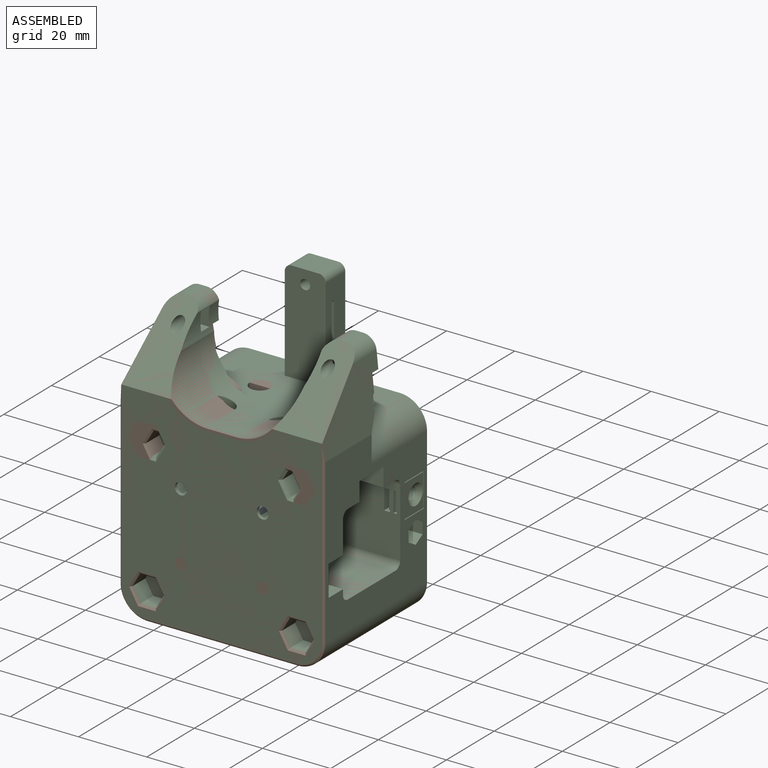
[diagram: assembled view]
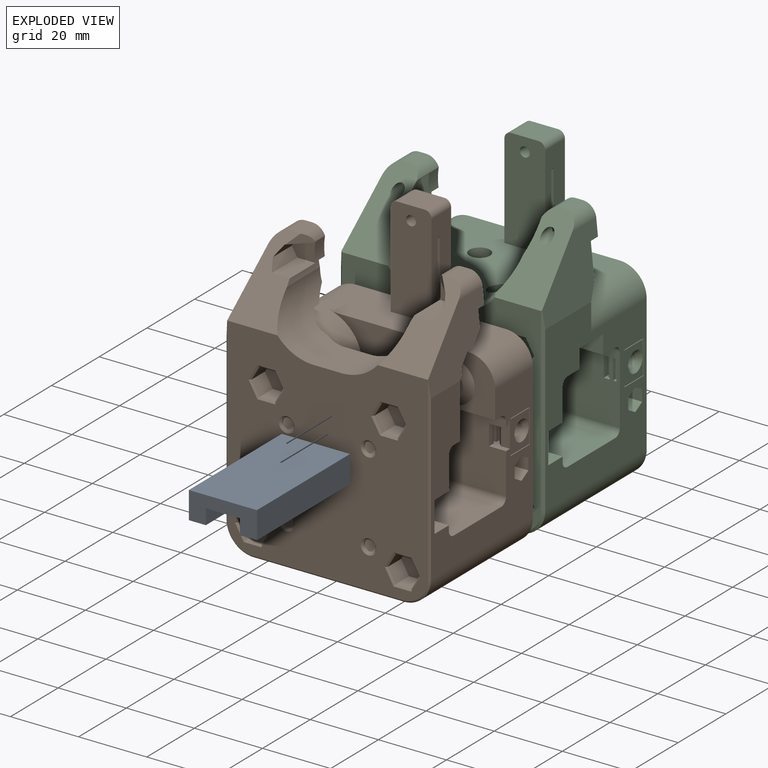
[diagram: exploded view]
GUIDED TOUR — FREECAD ASSEMBLY "x-carriage"

This assembly has 3 components, labeled P0..P2 below (a component is one placed body or linked part; the same part can appear more than once), held together by 0 modeled joints plus 3 derived contact edges. A joint is a constraint between two components; its type names the relative motion it leaves free:
  CONTACT — a derived adjacency edge — the two components touch in the source model (clearance under 2% of the assembly's diagonal); it is measured from the geometry, not a modeled constraint.
Axis/direction vectors are unit vectors and 'through' points are millimeter coordinates, both in the assembly's world frame.

MATES
  1. CONTACT "contact_0_1": P0 <-> P1, contact direction (0.000, 1.000, 0.000) through (-10.04, -19.58, 10.00) mm (derived from contact, not a modeled constraint)
  2. CONTACT "contact_0_2": P0 <-> P2, contact direction (0.000, 1.000, 0.000) through (-10.12, -19.75, 10.00) mm (derived from contact, not a modeled constraint)
  3. CONTACT "contact_1_2": P1 <-> P2, contact direction (0.000, 0.217, 0.976) through (20.75, 0.00, -22.45) mm (derived from contact, not a modeled constraint)

ASSEMBLY ORDER
  1. P0 — the base component [order heuristic]
  2. P1 [order heuristic]
  3. P2 [order heuristic]
Order-tag legend:
  [order heuristic] — this assembly is geometrically interlocked (no collision-free removal order exists), so components are listed in mate-graph order; insertion feasibility is not verified.

Of the 3 components, 3 carry a construction recipe — the FreeCAD feature program (sketches with constraints, then the solid features that consume them) that regenerates the part from scratch, quoted from this document or from the linked companion document it references; the rest are supplied as boundary geometry only. The tour below walks the components in assembly order: each is shown spotlighted twice — in the assembled view, then in the exploded view, where a leader line traces a displaced component back to its assembled socket (components that stay in place when exploded have no leader line; saturated green if recipe-attached, orange if geometry-only; every other component desaturated gray) — followed by its recipe or geometry summary and the mates that hold it.
NOTE — this tour is split across 2 documents so each fits a 32k-token context. This is document 1: the component sections continue in the remaining 1 document, each repeating the header above.
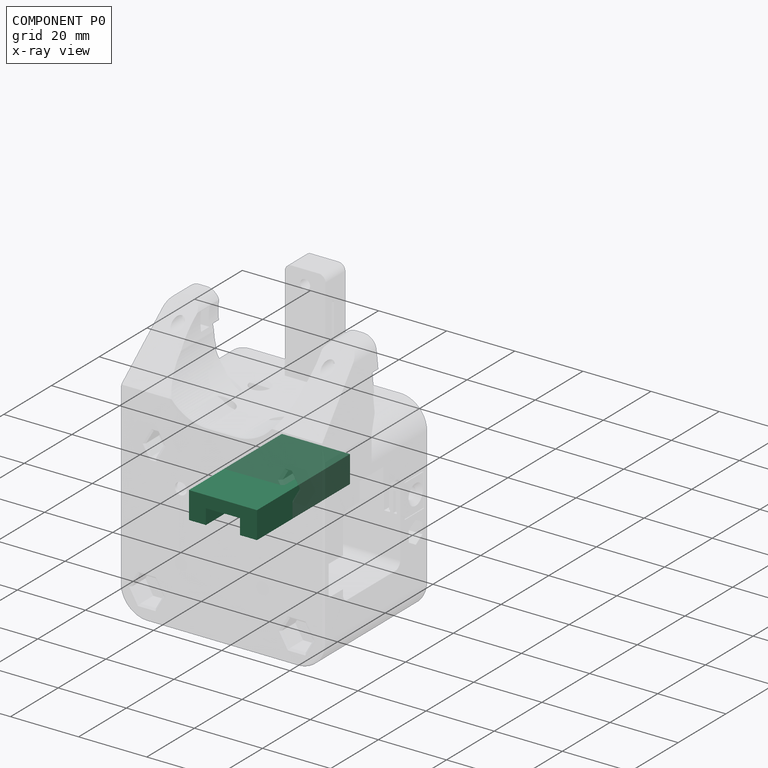
[diagram: component P0 — x-ray view]
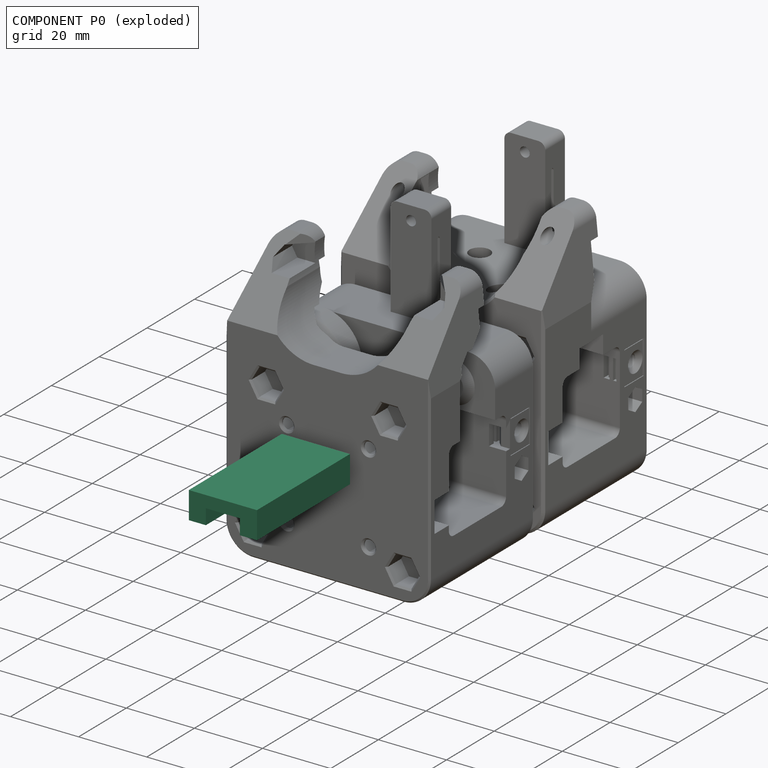
[diagram: component P0 — exploded]
COMPONENT P0 — recipe-attached ("carriage-mgn9h-drv", modeled in this document).
Held by: resting contact with P1 (derived edge); resting contact with P2 (derived edge).
Construction recipe (the document's own serialized feature program — sketch geometry with constraints, then the solid features built on it; lengths are millimeters unless a unit is written):

FEATURE [Sketcher::SketchObject] Sketch468
  ArcFitTolerance = 1e-06
  AttachmentSupport = -> [XZ_Plane293]
  FullyConstrained = true
  MakeInternals = false
  MapMode = 5
  Placement = pos=(0,0,0) rot=(1,0,0;1.5708rad)
  sketch-geometry (8):
    g0: LineSegment StartX=-10 StartY=10 StartZ=0 EndX=-10 EndY=2 EndZ=0
    g1: LineSegment StartX=-10 StartY=2 StartZ=0 EndX=-5 EndY=2 EndZ=0
    g2: LineSegment StartX=10 StartY=2 StartZ=0 EndX=10 EndY=10 EndZ=0
    g3: LineSegment StartX=10 StartY=10 StartZ=0 EndX=-10 EndY=10 EndZ=0
    g4: LineSegment StartX=-5 StartY=2 StartZ=0 EndX=-5 EndY=6.5 EndZ=0
    g5: LineSegment StartX=-5 StartY=6.5 StartZ=0 EndX=5 EndY=6.5 EndZ=0
    g6: LineSegment StartX=5 StartY=6.5 StartZ=0 EndX=5 EndY=2 EndZ=0
    g7: LineSegment StartX=5 StartY=2 StartZ=0 EndX=10 EndY=2 EndZ=0
  constraints (23):
    c: Coincident(g0,g1)
    c: Coincident(g7,g2)
    c: Coincident(g2,g3)
    c: Coincident(g3,g0)
    c: Vertical(g0)
    c: Vertical(g2)
    c: Horizontal(g1)
    c: Symmetric(g2,g0,g-2)
    c: DistanceX(g3,g3) = 20
    c: DistanceY(g2) = 10
    c: DistanceY(g7) = 2
    c: Vertical(g4)
    c: Coincident(g4,g5)
    c: Coincident(g5,g6)
    c: PointOnObject(g6,g7)
    c: Vertical(g6)
    c: Coincident(g1,g4)
    c: PointOnObject(g7,g6)
    c: Symmetric(g5,g4,g-2)
    c: DistanceX(g5,g5) = 10
    c: DistanceY(g5) = 6.5
    c: Horizontal(g7)
    c: Horizontal(g1,g6)
FEATURE [PartDesign::Pad] Pad102
  Direction = (0,-1,2e-16)
  Length = 39
  Length2 = 10
  Midplane = true
  Placement = pos=(0,0,0) rot=(1,0,0;1.5708rad)
  Profile = -> Sketch468
  ReferenceAxis = -> Sketch468 [N_Axis]
  Suppressed = false
  Type = 0
FEATURE [PartDesign::Body] Body154  label="carriage-mgn9h-drv"
  AllowCompound = false
  Group = -> [Sketch468,Pad102]
  Origin = -> Origin294
  Tip = -> Pad102
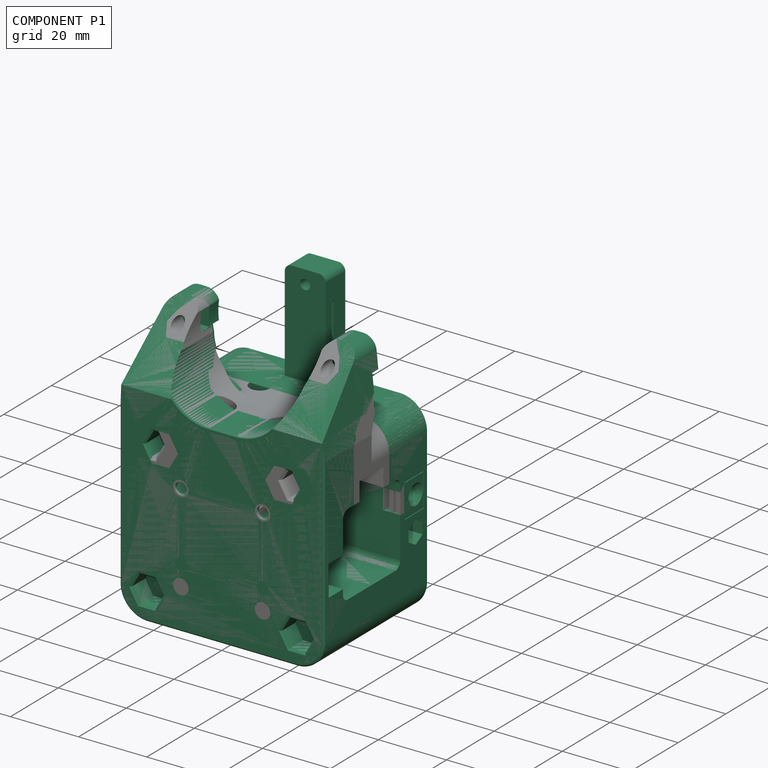
[diagram: component P1 — assembled]
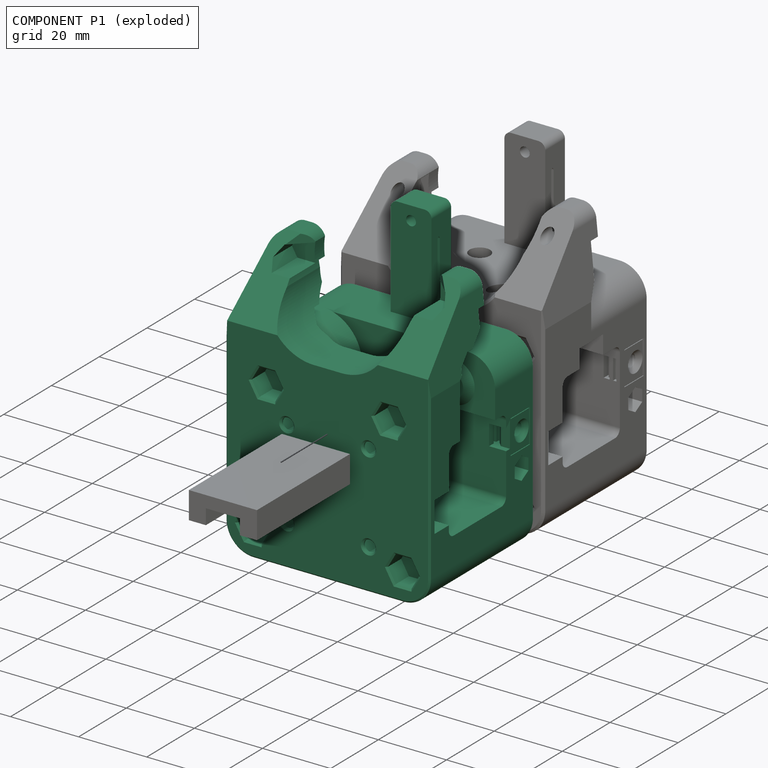
[diagram: component P1 — exploded]
COMPONENT P1 — recipe-attached ("main-vslot", modeled in this document).
Held by: resting contact with P0 (derived edge); resting contact with P2 (derived edge).
Construction recipe (the document's own serialized feature program — sketch geometry with constraints, then the solid features built on it; lengths are millimeters unless a unit is written):

FEATURE [Sketcher::SketchObject] Sketch
  ArcFitTolerance = 1e-06
  AttachmentSupport = -> [XZ_Plane189]
  FullyConstrained = true
  MakeInternals = false
  MapMode = 5
  Placement = pos=(0,0,0) rot=(1,0,0;1.5708rad)
  sketch-geometry (10):
    g0: LineSegment StartX=-30 StartY=28 StartZ=0 EndX=-30 EndY=-20 EndZ=0
    g1: LineSegment StartX=-22 StartY=-28 StartZ=0 EndX=22 EndY=-28 EndZ=0
    g2: LineSegment StartX=30 StartY=-20 StartZ=0 EndX=30 EndY=28 EndZ=0
    g3: LineSegment StartX=30 StartY=28 StartZ=0 EndX=-30 EndY=28 EndZ=0
    g4: GeomPoint [constr] X=-30 Y=28 Z=0
    g5: GeomPoint [constr] X=30 Y=28 Z=0
    g6: ArcOfCircle CenterX=22 CenterY=-20 CenterZ=0 NormalX=0 NormalY=0 NormalZ=1 AngleXU=0 Radius=8 StartAngle=4.71239 EndAngle=6.28319
    g7: GeomPoint [constr] X=30 Y=-28 Z=0
    g8: ArcOfCircle CenterX=-22 CenterY=-20 CenterZ=0 NormalX=0 NormalY=0 NormalZ=1 AngleXU=0 Radius=8 StartAngle=3.14159 EndAngle=4.71239
    g9: GeomPoint [constr] X=-30 Y=-28 Z=0
  constraints (23):
    c: Vertical(g0)
    c: Vertical(g2)
    c: Horizontal(g1)
    c: Horizontal(g3)
    c: DistanceX(g9,g7) = 60
    c: Symmetric(g7,g4,g-1)
    c: DistanceY(g7,g5) = 56
    c: PointOnObject(g4,g0)
    c: PointOnObject(g4,g3)
    c: PointOnObject(g5,g2)
    c: PointOnObject(g5,g3)
    c: PointOnObject(g7,g1)
    c: PointOnObject(g7,g2)
    c: Tangent(g1,g6) = -1.5708
    c: Tangent(g2,g6) = -1.5708
    c: PointOnObject(g9,g0)
    c: PointOnObject(g9,g1)
    c: Tangent(g0,g8) = -1.5708
    c: Tangent(g1,g8) = -1.5708
    c: Radius(g6) = 8
    c: Coincident(g2,g3)
    c: Coincident(g3,g0)
    c: Equal(g8,g6)
FEATURE [PartDesign::Pad] Pad
  Direction = (0,-1,2e-16)
  Length = 20
  Length2 = 10
  Placement = pos=(0,0,0) rot=(1,0,0;1.5708rad)
  Profile = -> Sketch
  ReferenceAxis = -> Sketch [N_Axis]
  Suppressed = false
  Type = 0
FEATURE [Sketcher::SketchObject] Sketch386
  ArcFitTolerance = 1e-06
  AttachmentSupport = -> [YZ_Plane189]
  FullyConstrained = true
  MakeInternals = false
  MapMode = 5
  Placement = pos=(0,0,0) rot=(0.57735,0.57735,0.57735;2.0944rad)
  sketch-geometry (12):
    g0: LineSegment StartX=-12 StartY=10 StartZ=0 EndX=-12 EndY=-10 EndZ=0
    g1: LineSegment StartX=-10 StartY=-12 StartZ=0 EndX=10 EndY=-12 EndZ=0
    g2: LineSegment StartX=12 StartY=-10 StartZ=0 EndX=12 EndY=10 EndZ=0
    g3: LineSegment StartX=10 StartY=12 StartZ=0 EndX=-10 EndY=12 EndZ=0
    g4: ArcOfCircle CenterX=-10 CenterY=10 CenterZ=0 NormalX=0 NormalY=0 NormalZ=1 AngleXU=0 Radius=2 StartAngle=1.5708 EndAngle=3.14159
    g5: GeomPoint [constr] X=-12 Y=12 Z=0
    g6: ArcOfCircle CenterX=10 CenterY=10 CenterZ=0 NormalX=0 NormalY=0 NormalZ=1 AngleXU=0 Radius=2 StartAngle=4.6e-15 EndAngle=1.5708
    g7: GeomPoint [constr] X=12 Y=12 Z=0
    g8: ArcOfCircle CenterX=10 CenterY=-10 CenterZ=0 NormalX=0 NormalY=0 NormalZ=1 AngleXU=0 Radius=2 StartAngle=4.71239 EndAngle=6.28319
    g9: GeomPoint [constr] X=12 Y=-12 Z=0
    g10: ArcOfCircle CenterX=-10 CenterY=-10 CenterZ=0 NormalX=0 NormalY=0 NormalZ=1 AngleXU=0 Radius=2 StartAngle=3.14159 EndAngle=4.71239
    g11: GeomPoint [constr] X=-12 Y=-12 Z=0
  constraints (27):
    c: Vertical(g0)
    c: Vertical(g2)
    c: Horizontal(g1)
    c: Horizontal(g3)
    c: Symmetric(g9,g5,g-1)
    c: PointOnObject(g5,g0)
    c: PointOnObject(g5,g3)
    c: Tangent(g0,g4) = -1.5708
    c: Tangent(g3,g4) = -1.5708
    c: PointOnObject(g7,g2)
    c: PointOnObject(g7,g3)
    c: Tangent(g2,g6) = -1.5708
    c: Tangent(g3,g6) = -1.5708
    c: PointOnObject(g9,g1)
    c: PointOnObject(g9,g2)
    c: Tangent(g1,g8) = -1.5708
    c: Tangent(g2,g8) = -1.5708
    c: PointOnObject(g11,g0)
    c: PointOnObject(g11,g1)
    c: Tangent(g0,g10) = -1.5708
    c: Tangent(g1,g10) = -1.5708
    c: Equal(g10,g4)
    c: Equal(g4,g6)
    c: Equal(g6,g8)
    c: Equal(g1,g2)
    c: DistanceX(g1,g1) = 20
    c: Radius(g10) = 2
FEATURE [PartDesign::Pocket] Pocket
  BaseFeature = -> Pad
  Direction = (-1,0,0)
  Length = 5
  Length2 = 5
  Midplane = true
  Placement = pos=(0,0,0) rot=(1,0,0;1.5708rad)
  Profile = -> Sketch386
  ReferenceAxis = -> Sketch386 [N_Axis]
  Suppressed = false
  Type = 1
FEATURE [Sketcher::SketchObject] Sketch387
  ArcFitTolerance = 1e-06
  AttachmentSupport = -> [XY_Plane189]
  FullyConstrained = true
  MakeInternals = false
  MapMode = 5
  expr: Constraints[10] = Spreadsheet.v_wheel_width / 2 + 2
  sketch-geometry (4):
    g0: LineSegment StartX=-30 StartY=0 StartZ=0 EndX=-30 EndY=-7.4 EndZ=0
    g1: LineSegment StartX=-30 StartY=-7.4 StartZ=0 EndX=30 EndY=-7.4 EndZ=0
    g2: LineSegment StartX=30 StartY=-7.4 StartZ=0 EndX=30 EndY=0 EndZ=0
    g3: LineSegment StartX=30 StartY=0 StartZ=0 EndX=-30 EndY=0 EndZ=0
  constraints (11):
    c: Coincident(g0,g1)
    c: Coincident(g1,g2)
    c: Coincident(g2,g3)
    c: Coincident(g3,g0)
    c: Vertical(g0)
    c: Vertical(g2)
    c: Horizontal(g1)
    c: PointOnObject(g0,g-1)
    c: Symmetric(g2,g0,g-2)
    c: DistanceX(g1,g1) = 60
    c: DistanceY(g2,g2) = 7.4
FEATURE [PartDesign::Pocket] Pocket264
  BaseFeature = -> Pocket
  Direction = (0,0,-1)
  Length = 5
  Length2 = 5
  Placement = pos=(0,0,0) rot=(1,0,0;1.5708rad)
  Profile = -> Sketch387
  ReferenceAxis = -> Sketch387 [N_Axis]
  Reversed = true
  Suppressed = false
  Type = 1
FEATURE [Sketcher::SketchObject] Sketch388
  ArcFitTolerance = 1e-06
  AttachmentOffset = pos=(0,0,19) rot=(0,0,1;0rad)
  AttachmentSupport = -> [XY_Plane189]
  FullyConstrained = true
  MakeInternals = false
  MapMode = 5
  Placement = pos=(0,0,19) rot=(0,0,1;0rad)
  expr: .AttachmentOffset.Base.z = Spreadsheet.v_wheel_height
  expr: Constraints[10] = Spreadsheet.v_wheel_width / 2
  sketch-geometry (5):
    g0: GeomPoint X=-18 Y=0 Z=0
    g1: LineSegment StartX=-18 StartY=-5.4 StartZ=0 EndX=-14 EndY=-5.4 EndZ=0
    g2: LineSegment StartX=-14 StartY=-5.4 StartZ=0 EndX=-12 EndY=-7.4 EndZ=0
    g3: LineSegment StartX=-12 StartY=-7.4 StartZ=0 EndX=-18 EndY=-7.4 EndZ=0
    g4: LineSegment StartX=-18 StartY=-7.4 StartZ=0 EndX=-18 EndY=-5.4 EndZ=0
  constraints (14):
    c: PointOnObject(g0,g-1)
    c: DistanceX(g0) = -18
    c: Horizontal(g1)
    c: Coincident(g1,g2)
    c: Coincident(g2,g3)
    c: Horizontal(g3)
    c: Coincident(g3,g4)
    c: Coincident(g4,g1)
    c: Vertical(g4)
    c: Vertical(g1,g0)
    c: DistanceY(g1,g0) = 5.4
    c: DistanceY(g4,g4) = 2
    c: DistanceX(g1,g1) = 4
    c: Angle(g2) = -0.785398
FEATURE [PartDesign::Revolution] Revolution
  Angle = 360
  Angle2 = 60
  Axis = (0,1,0)
  Base = (-18,-7.4,19)
  BaseFeature = -> Pocket264
  Placement = pos=(0,0,0) rot=(1,0,0;1.5708rad)
  Profile = -> Sketch388
  ReferenceAxis = -> Sketch388 [Edge4]
  Suppressed = false
  Type = 0
FEATURE [PartDesign::Mirrored] Mirrored
  BaseFeature = -> Revolution
  MirrorPlane = -> YZ_Plane189
  Originals = -> [Revolution]
  Placement = pos=(0,0,0) rot=(1,0,0;1.5708rad)
  Suppressed = false
  TransformMode = 0
FEATURE [Sketcher::SketchObject] Sketch389
  ArcFitTolerance = 1e-06
  AttachmentOffset = pos=(0,0,13.7) rot=(0,0,1;0rad)
  AttachmentSupport = -> [XZ_Plane189]
  FullyConstrained = true
  MakeInternals = false
  MapMode = 5
  Placement = pos=(0,-13.7,3e-15) rot=(1,0,0;1.5708rad)
  expr: Constraints[9] = Spreadsheet.v_wheel_height
  sketch-geometry (4):
    g0: Circle CenterX=22 CenterY=-20 CenterZ=0 NormalX=0 NormalY=0 NormalZ=1 AngleXU=0 Radius=2.75
    g1: Circle CenterX=-22 CenterY=-20 CenterZ=0 NormalX=0 NormalY=0 NormalZ=1 AngleXU=0 Radius=2.75
    g2: Circle CenterX=-18 CenterY=19 CenterZ=0 NormalX=0 NormalY=0 NormalZ=1 AngleXU=0 Radius=2.75
    g3: Circle CenterX=18 CenterY=19 CenterZ=0 NormalX=0 NormalY=0 NormalZ=1 AngleXU=0 Radius=2.75
  constraints (10):
    c: Equal(g3,g0)
    c: Equal(g3,g1)
    c: Equal(g3,g2)
    c: Diameter(g3) = 5.5
    c: Symmetric(g3,g2,g-2)
    c: Symmetric(g1,g0,g-2)
    c: DistanceY(g0) = -20
    c: DistanceX(g1,g0) = 44
    c: DistanceX(g2,g3) = 36
    c: DistanceY(g3) = 19
FEATURE [PartDesign::Pocket] Pocket265
  BaseFeature = -> Mirrored
  Direction = (0,1,-2e-16)
  Length = 5
  Length2 = 5
  Placement = pos=(0,0,0) rot=(1,0,0;1.5708rad)
  Profile = -> Sketch389
  ReferenceAxis = -> Sketch389 [N_Axis]
  Suppressed = false
  Type = 1
FEATURE [Sketcher::SketchObject] Sketch390
  ArcFitTolerance = 1e-06
  AttachmentOffset = pos=(0,0,14) rot=(0,0,1;0rad)
  AttachmentSupport = -> [XZ_Plane189]
  FullyConstrained = true
  MakeInternals = false
  MapMode = 5
  Placement = pos=(0,-14,3.1e-15) rot=(1,0,0;1.5708rad)
  expr: Constraints[79] = Spreadsheet.v_wheel_height
  sketch-geometry (28):
    g0: LineSegment StartX=-15.6906 StartY=15 StartZ=0 EndX=-13.3812 EndY=19 EndZ=0
    g1: LineSegment StartX=-13.3812 StartY=19 StartZ=0 EndX=-15.6906 EndY=23 EndZ=0
    g2: LineSegment StartX=-15.6906 StartY=23 StartZ=0 EndX=-20.3094 EndY=23 EndZ=0
    g3: LineSegment StartX=-20.3094 StartY=23 StartZ=0 EndX=-22.6188 EndY=19 EndZ=0
    g4: LineSegment StartX=-22.6188 StartY=19 StartZ=0 EndX=-20.3094 EndY=15 EndZ=0
    g5: LineSegment StartX=-20.3094 StartY=15 StartZ=0 EndX=-15.6906 EndY=15 EndZ=0
    g6: Circle [constr] CenterX=-18 CenterY=19 CenterZ=0 NormalX=0 NormalY=0 NormalZ=1 AngleXU=0 Radius=4.6188
    g7: LineSegment StartX=22.6188 StartY=19 StartZ=0 EndX=20.3094 EndY=23 EndZ=0
    g8: LineSegment StartX=20.3094 StartY=23 StartZ=0 EndX=15.6906 EndY=23 EndZ=0
    g9: LineSegment StartX=15.6906 StartY=23 StartZ=0 EndX=13.3812 EndY=19 EndZ=0
    g10: LineSegment StartX=13.3812 StartY=19 StartZ=0 EndX=15.6906 EndY=15 EndZ=0
    g11: LineSegment StartX=15.6906 StartY=15 StartZ=0 EndX=20.3094 EndY=15 EndZ=0
    g12: LineSegment StartX=20.3094 StartY=15 StartZ=0 EndX=22.6188 EndY=19 EndZ=0
    g13: Circle [constr] CenterX=18 CenterY=19 CenterZ=0 NormalX=0 NormalY=0 NormalZ=1 AngleXU=0 Radius=4.6188
    g14: LineSegment StartX=24.3094 StartY=-24 StartZ=0 EndX=26.6188 EndY=-20 EndZ=0
    g15: LineSegment StartX=26.6188 StartY=-20 StartZ=0 EndX=24.3094 EndY=-16 EndZ=0
    g16: LineSegment StartX=24.3094 StartY=-16 StartZ=0 EndX=19.6906 EndY=-16 EndZ=0
    g17: LineSegment StartX=19.6906 StartY=-16 StartZ=0 EndX=17.3812 EndY=-20 EndZ=0
    g18: LineSegment StartX=17.3812 StartY=-20 StartZ=0 EndX=19.6906 EndY=-24 EndZ=0
    g19: LineSegment StartX=19.6906 StartY=-24 StartZ=0 EndX=24.3094 EndY=-24 EndZ=0
    g20: Circle [constr] CenterX=22 CenterY=-20 CenterZ=0 NormalX=0 NormalY=0 NormalZ=1 AngleXU=0 Radius=4.6188
    g21: LineSegment StartX=-24.3094 StartY=-24 StartZ=0 EndX=-19.6906 EndY=-24 EndZ=0
    g22: LineSegment StartX=-19.6906 StartY=-24 StartZ=0 EndX=-17.3812 EndY=-20 EndZ=0
    g23: LineSegment StartX=-17.3812 StartY=-20 StartZ=0 EndX=-19.6906 EndY=-16 EndZ=0
    g24: LineSegment StartX=-19.6906 StartY=-16 StartZ=0 EndX=-24.3094 EndY=-16 EndZ=0
    g25: LineSegment StartX=-24.3094 StartY=-16 StartZ=0 EndX=-26.6188 EndY=-20 EndZ=0
    g26: LineSegment StartX=-26.6188 StartY=-20 StartZ=0 EndX=-24.3094 EndY=-24 EndZ=0
    g27: Circle [constr] CenterX=-22 CenterY=-20 CenterZ=0 NormalX=0 NormalY=0 NormalZ=1 AngleXU=0 Radius=4.6188
  constraints (66):
    c: Coincident(g0,g1)
    c: Coincident(g1,g2)
    c: Coincident(g2,g3)
    c: Coincident(g3,g4)
    c: Coincident(g4,g5)
    c: Coincident(g5,g0)
    c: Equal(g0, g1-g5) x5
    c: PointOnObject(g0,g6)
    c: PointOnObject(g1,g6)
    c: PointOnObject(g2,g6)
    c: PointOnObject(g3,g6)
    c: PointOnObject(g4,g6)
    c: PointOnObject(g5,g6)
    c: Coincident(g7,g8)
    c: Coincident(g8,g9)
    c: Coincident(g9,g10)
    c: Coincident(g10,g11)
    c: Coincident(g11,g12)
    c: Coincident(g12,g7)
    c: Equal(g7, g8-g12) x5
    c: PointOnObject(g7,g13)
    c: PointOnObject(g8,g13)
    c: PointOnObject(g9,g13)
    c: PointOnObject(g10,g13)
    c: PointOnObject(g11,g13)
    c: PointOnObject(g12,g13)
    c: Coincident(g14,g15)
    c: Coincident(g15,g16)
    c: Coincident(g16,g17)
    c: Coincident(g17,g18)
    c: Coincident(g18,g19)
    c: Coincident(g19,g14)
    c: Equal(g14, g15-g19) x5
    c: PointOnObject(g14,g20)
    c: PointOnObject(g15,g20)
    c: PointOnObject(g16,g20)
    c: PointOnObject(g17,g20)
    c: PointOnObject(g18,g20)
    c: PointOnObject(g19,g20)
    c: Coincident(g21,g22)
    c: Coincident(g22,g23)
    c: Coincident(g23,g24)
    c: Coincident(g24,g25)
    c: Coincident(g25,g26)
    c: Coincident(g26,g21)
    c: Equal(g21, g22-g26) x5
    c: PointOnObject(g21,g27)
    c: PointOnObject(g22,g27)
    c: PointOnObject(g23,g27)
    c: PointOnObject(g24,g27)
    c: PointOnObject(g25,g27)
    c: PointOnObject(g26,g27)
    c: Symmetric(g20,g27,g-2)
    c: Symmetric(g13,g6,g-2)
    c: Equal(g13,g6)
    c: Equal(g6,g27)
    c: Equal(g27,g20)
    c: Horizontal(g16)
    c: Horizontal(g24)
    c: Horizontal(g5)
    c: Horizontal(g11)
    c: DistanceY(g11,g7) = 8
    c: DistanceX(g6,g13) = 36
    c: DistanceY(g13) = 19
    c: DistanceX(g27,g20) = 44
    c: DistanceY(g20) = -20
FEATURE [PartDesign::Pocket] Pocket266
  BaseFeature = -> Pocket265
  Direction = (0,1,-2e-16)
  Length = 5
  Length2 = 5
  Placement = pos=(0,0,0) rot=(1,0,0;1.5708rad)
  Profile = -> Sketch390
  ReferenceAxis = -> Sketch390 [N_Axis]
  Reversed = true
  Suppressed = false
  Type = 1
FEATURE [Sketcher::SketchObject] Sketch391
  ArcFitTolerance = 1e-06
  AttachmentSupport = -> [XY_Plane189]
  FullyConstrained = true
  MakeInternals = false
  MapMode = 5
  sketch-geometry (5):
    g0: LineSegment StartX=0 StartY=0 StartZ=0 EndX=14 EndY=0 EndZ=0
    g1: LineSegment StartX=14 StartY=0 StartZ=0 EndX=14 EndY=-5 EndZ=0
    g2: LineSegment StartX=14 StartY=-5 StartZ=0 EndX=9 EndY=-10 EndZ=0
    g3: LineSegment StartX=9 StartY=-10 StartZ=0 EndX=0 EndY=-10 EndZ=0
    g4: LineSegment StartX=0 StartY=-10 StartZ=0 EndX=0 EndY=0 EndZ=0
  constraints (14):
    c: Coincident(g-1,g0)
    c: PointOnObject(g0,g-1)
    c: Coincident(g0,g1)
    c: Vertical(g1)
    c: Coincident(g1,g2)
    c: Coincident(g2,g3)
    c: PointOnObject(g3,g-2)
    c: Horizontal(g3)
    c: Coincident(g3,g4)
    c: Coincident(g4,g0)
    c: DistanceX(g0,g0) = 14
    c: DistanceY(g1,g1) = 5
    c: Angle(g2) = -2.35619
    c: DistanceY(g3) = -10
FEATURE [PartDesign::Pocket] Pocket267
  BaseFeature = -> Pocket266
  Direction = (0,0,-1)
  Length = 20
  Length2 = 5
  Placement = pos=(0,0,0) rot=(1,0,0;1.5708rad)
  Profile = -> Sketch391
  ReferenceAxis = -> Sketch391 [N_Axis]
  Suppressed = false
  Type = 1
FEATURE [PartDesign::Mirrored] Mirrored018
  BaseFeature = -> Pocket267
  MirrorPlane = -> YZ_Plane189
  Originals = -> [Pocket267]
  Placement = pos=(0,0,0) rot=(1,0,0;1.5708rad)
  Refine = true
  Suppressed = false
  TransformMode = 0
FEATURE [Sketcher::SketchObject] Sketch393
  ArcFitTolerance = 0
  AttachmentOffset = pos=(0,0,12) rot=(0,0,1;0rad)
  AttachmentSupport = -> [XZ_Plane189]
  FullyConstrained = true
  MakeInternals = false
  MapMode = 5
  Placement = pos=(0,-12,2.7e-15) rot=(1,0,0;1.5708rad)
  sketch-geometry (9):
    g0: LineSegment StartX=-14 StartY=11.5 StartZ=0 EndX=-14 EndY=-3.5 EndZ=0
    g1: LineSegment StartX=-30 StartY=-0.5 StartZ=0 EndX=-30 EndY=8.5 EndZ=0
    g2: GeomPoint [constr] X=0 Y=5 Z=0
    g3: LineSegment StartX=-14 StartY=11.5 StartZ=0 EndX=-22 EndY=11.5 EndZ=0
    g4: LineSegment StartX=-22 StartY=11.5 StartZ=0 EndX=-22 EndY=8.5 EndZ=0
    g5: LineSegment StartX=-22 StartY=8.5 StartZ=0 EndX=-30 EndY=8.5 EndZ=0
    g6: LineSegment StartX=-30 StartY=-0.5 StartZ=0 EndX=-22 EndY=-0.5 EndZ=0
    g7: LineSegment StartX=-22 StartY=-0.5 StartZ=0 EndX=-22 EndY=-3.5 EndZ=0
    g8: LineSegment StartX=-22 StartY=-3.5 StartZ=0 EndX=-14 EndY=-3.5 EndZ=0
  constraints (26):
    c: Vertical(g0)
    c: Vertical(g1)
    c: DistanceX(g1) = -30
    c: DistanceY(g2) = 5
    c: DistanceX(g0) = -14
    c: Coincident(g3,g0)
    c: Horizontal(g3)
    c: Coincident(g4,g3)
    c: Vertical(g4)
    c: Coincident(g5,g4)
    c: Coincident(g5,g1)
    c: Coincident(g6,g1)
    c: Horizontal(g6)
    c: Coincident(g7,g6)
    c: Vertical(g7)
    c: Coincident(g8,g7)
    c: Coincident(g8,g0)
    c: Horizontal(g8)
    c: Horizontal(g5)
    c: Vertical(g4,g6)
    c: DistanceY(g4,g4) = 3
    c: DistanceX(g3,g3) = 8
    c: PointOnObject(g2,g-2)
    c: DistanceY(g1,g2) = 5.5
    c: Equal(g7,g4)
    c: DistanceY(g2,g1) = 3.5
FEATURE [Sketcher::SketchObject] Sketch394
  ArcFitTolerance = 0
  AttachmentOffset = pos=(0,0,18) rot=(0,0,1;0rad)
  AttachmentSupport = -> [XZ_Plane189]
  FullyConstrained = true
  MakeInternals = false
  MapMode = 5
  Placement = pos=(0,-18,4e-15) rot=(1,0,0;1.5708rad)
  sketch-geometry (9):
    g0: LineSegment StartX=-30 StartY=8.5 StartZ=0 EndX=-24 EndY=8.5 EndZ=0
    g1: LineSegment StartX=-24 StartY=8.5 StartZ=0 EndX=-24 EndY=11.5 EndZ=0
    g2: LineSegment StartX=-24 StartY=11.5 StartZ=0 EndX=-16 EndY=11.5 EndZ=0
    g3: LineSegment StartX=-16 StartY=11.5 StartZ=0 EndX=-16 EndY=-3.5 EndZ=0
    g4: LineSegment StartX=-16 StartY=-3.5 StartZ=0 EndX=-24 EndY=-3.5 EndZ=0
    g5: LineSegment StartX=-24 StartY=-3.5 StartZ=0 EndX=-24 EndY=-0.5 EndZ=0
    g6: LineSegment StartX=-24 StartY=-0.5 StartZ=0 EndX=-30 EndY=-0.5 EndZ=0
    g7: LineSegment StartX=-30 StartY=-0.5 StartZ=0 EndX=-30 EndY=8.5 EndZ=0
    g8: GeomPoint [constr] X=0 Y=5 Z=0
  constraints (26):
    c: Horizontal(g0)
    c: Coincident(g1,g0)
    c: Vertical(g1)
    c: Coincident(g2,g1)
    c: Horizontal(g2)
    c: Coincident(g3,g2)
    c: Vertical(g3)
    c: Coincident(g4,g3)
    c: Horizontal(g4)
    c: Coincident(g5,g4)
    c: Coincident(g6,g5)
    c: Horizontal(g6)
    c: Coincident(g7,g6)
    c: Coincident(g7,g0)
    c: Vertical(g7)
    c: Vertical(g5)
    c: Vertical(g5,g0)
    c: Equal(g1,g5)
    c: DistanceY(g1,g1) = 3
    c: DistanceX(g6) = -30
    c: DistanceX(g2) = -16  '-16'
    c: DistanceX(g4,g4) = 8
    c: PointOnObject(g8,g-2)
    c: DistanceY(g8) = 5
    c: DistanceY(g5,g8) = 5.5
    c: DistanceY(g8,g0) = 3.5
FEATURE [PartDesign::SubtractiveLoft] SubtractiveLoft001
  BaseFeature = -> Mirrored018
  Closed = false
  Placement = pos=(0,0,0) rot=(1,0,0;1.5708rad)
  Profile = -> Sketch393
  Ruled = false
  Sections = -> [Sketch394]
  Suppressed = false
FEATURE [PartDesign::Pocket] Pocket268
  BaseFeature = -> SubtractiveLoft001
  Direction = (0,1,-2e-16)
  Length = 5
  Length2 = 5
  Placement = pos=(0,0,0) rot=(1,0,0;1.5708rad)
  Profile = -> Sketch393
  ReferenceAxis = -> Sketch393 [N_Axis]
  Refine = true
  Suppressed = false
  Type = 0
FEATURE [PartDesign::PolarPattern] PolarPattern
  Angle = 360
  Axis = -> Y_Axis190
  BaseFeature = -> Pocket268
  Mode = 0
  Occurrences = 2
  Offset = 120
  Originals = -> [Pocket268,SubtractiveLoft001]
  Placement = pos=(0,0,0) rot=(1,0,0;1.5708rad)
  Suppressed = false
  TransformMode = 0
FEATURE [Sketcher::SketchObject] Sketch395
  ArcFitTolerance = 1e-06
  AttachmentOffset = pos=(0,0,16) rot=(0,0,1;0rad)
  AttachmentSupport = -> [XZ_Plane189]
  FullyConstrained = true
  MakeInternals = false
  MapMode = 5
  Placement = pos=(0,-16,3.6e-15) rot=(1,0,0;1.5708rad)
  sketch-geometry (4):
    g0: Circle CenterX=-12 CenterY=10 CenterZ=0 NormalX=0 NormalY=0 NormalZ=1 AngleXU=0 Radius=1.75
    g1: Circle CenterX=12 CenterY=10 CenterZ=0 NormalX=0 NormalY=0 NormalZ=1 AngleXU=0 Radius=1.75
    g2: Circle CenterX=12 CenterY=-16 CenterZ=0 NormalX=0 NormalY=0 NormalZ=1 AngleXU=0 Radius=1.75
    g3: Circle CenterX=-12 CenterY=-16 CenterZ=0 NormalX=0 NormalY=0 NormalZ=1 AngleXU=0 Radius=1.75
  constraints (11):
    c: Equal(g3,g2)
    c: Equal(g2,g1)
    c: Equal(g1,g0)
    c: Diameter(g0) = 3.5
    c: Vertical(g2,g1)
    c: Vertical(g3,g0)
    c: Horizontal(g2,g3)
    c: DistanceX(g0,g1) = 24
    c: DistanceY(g1) = 10
    c: DistanceY(g2) = -16
    c: Symmetric(g1,g0,g-2)
FEATURE [Sketcher::SketchObject] Sketch400
  ArcFitTolerance = 1e-06
  AttachmentSupport = -> [XZ_Plane191]
  FullyConstrained = true
  MakeInternals = false
  MapMode = 5
  Placement = pos=(0,0,0) rot=(1,0,0;1.5708rad)
  sketch-geometry (12):
    g0: LineSegment StartX=-30 StartY=20 StartZ=0 EndX=-30 EndY=-20 EndZ=0
    g1: LineSegment StartX=-22 StartY=-28 StartZ=0 EndX=22 EndY=-28 EndZ=0
    g2: LineSegment StartX=30 StartY=-20 StartZ=0 EndX=30 EndY=20 EndZ=0
    g3: LineSegment StartX=22 StartY=28 StartZ=0 EndX=-22 EndY=28 EndZ=0
    g4: ArcOfCircle CenterX=-22 CenterY=20 CenterZ=0 NormalX=0 NormalY=0 NormalZ=1 AngleXU=0 Radius=8 StartAngle=1.5708 EndAngle=3.14159
    g5: GeomPoint [constr] X=-30 Y=28 Z=0
    g6: ArcOfCircle CenterX=22 CenterY=20 CenterZ=0 NormalX=0 NormalY=0 NormalZ=1 AngleXU=0 Radius=8 StartAngle=1e-16 EndAngle=1.5708
    g7: GeomPoint [constr] X=30 Y=28 Z=0
    g8: ArcOfCircle CenterX=22 CenterY=-20 CenterZ=0 NormalX=0 NormalY=0 NormalZ=1 AngleXU=0 Radius=8 StartAngle=4.71239 EndAngle=6.28319
    g9: GeomPoint [constr] X=30 Y=-28 Z=0
    g10: ArcOfCircle CenterX=-22 CenterY=-20 CenterZ=0 NormalX=0 NormalY=0 NormalZ=1 AngleXU=0 Radius=8 StartAngle=3.14159 EndAngle=4.71239
    g11: GeomPoint [constr] X=-30 Y=-28 Z=0
  constraints (27):
    c: Vertical(g0)
    c: Vertical(g2)
    c: Horizontal(g1)
    c: Horizontal(g3)
    c: Symmetric(g9,g5,g-1)
    c: DistanceX(g5,g7) = 60
    c: DistanceY(g9,g7) = 56
    c: PointOnObject(g5,g0)
    c: PointOnObject(g5,g3)
    c: Tangent(g0,g4) = -1.5708
    c: Tangent(g3,g4) = -1.5708
    c: PointOnObject(g7,g2)
    c: PointOnObject(g7,g3)
    c: Tangent(g2,g6) = -1.5708
    c: Tangent(g3,g6) = -1.5708
    c: PointOnObject(g9,g1)
    c: PointOnObject(g9,g2)
    c: Tangent(g1,g8) = -1.5708
    c: Tangent(g2,g8) = -1.5708
    c: PointOnObject(g11,g0)
    c: PointOnObject(g11,g1)
    c: Tangent(g0,g10) = -1.5708
    c: Tangent(g1,g10) = -1.5708
    c: Equal(g10,g4)
    c: Equal(g4,g6)
    c: Equal(g6,g8)
    c: Radius(g8) = 8
FEATURE [PartDesign::Pad] Pad025
  Direction = (0,-1,2e-16)
  Length = 24
  Length2 = 10
  Placement = pos=(0,0,0) rot=(1,0,0;1.5708rad)
  Profile = -> Sketch400
  ReferenceAxis = -> Sketch400 [N_Axis]
  Reversed = true
  Suppressed = false
  Type = 0
FEATURE [Sketcher::SketchObject] Sketch401
  ArcFitTolerance = 1e-06
  AttachmentSupport = -> [YZ_Plane191]
  FullyConstrained = true
  MakeInternals = false
  MapMode = 5
  Placement = pos=(0,0,0) rot=(0.57735,0.57735,0.57735;2.0944rad)
  sketch-geometry (12):
    g0: LineSegment StartX=-12 StartY=10 StartZ=0 EndX=-12 EndY=-10 EndZ=0
    g1: LineSegment StartX=-10 StartY=-12 StartZ=0 EndX=10 EndY=-12 EndZ=0
    g2: LineSegment StartX=12 StartY=-10 StartZ=0 EndX=12 EndY=10 EndZ=0
    g3: LineSegment StartX=10 StartY=12 StartZ=0 EndX=-10 EndY=12 EndZ=0
    g4: ArcOfCircle CenterX=-10 CenterY=10 CenterZ=0 NormalX=0 NormalY=0 NormalZ=1 AngleXU=0 Radius=2 StartAngle=1.5708 EndAngle=3.14159
    g5: GeomPoint [constr] X=-12 Y=12 Z=0
    g6: ArcOfCircle CenterX=10 CenterY=10 CenterZ=0 NormalX=0 NormalY=0 NormalZ=1 AngleXU=0 Radius=2 StartAngle=8.8e-15 EndAngle=1.5708
    g7: GeomPoint [constr] X=12 Y=12 Z=0
    g8: ArcOfCircle CenterX=10 CenterY=-10 CenterZ=0 NormalX=0 NormalY=0 NormalZ=1 AngleXU=0 Radius=2 StartAngle=4.71239 EndAngle=6.28319
    g9: GeomPoint [constr] X=12 Y=-12 Z=0
    g10: ArcOfCircle CenterX=-10 CenterY=-10 CenterZ=0 NormalX=0 NormalY=0 NormalZ=1 AngleXU=0 Radius=2 StartAngle=3.14159 EndAngle=4.71239
    g11: GeomPoint [constr] X=-12 Y=-12 Z=0
  constraints (27):
    c: Vertical(g0)
    c: Vertical(g2)
    c: Horizontal(g1)
    c: Horizontal(g3)
    c: PointOnObject(g5,g0)
    c: PointOnObject(g5,g3)
    c: Tangent(g0,g4) = -1.5708
    c: Tangent(g3,g4) = -1.5708
    c: PointOnObject(g7,g2)
    c: PointOnObject(g7,g3)
    c: Tangent(g2,g6) = -1.5708
    c: Tangent(g3,g6) = -1.5708
    c: PointOnObject(g9,g1)
    c: PointOnObject(g9,g2)
    c: Tangent(g1,g8) = -1.5708
    c: Tangent(g2,g8) = -1.5708
    c: PointOnObject(g11,g0)
    c: PointOnObject(g11,g1)
    c: Tangent(g0,g10) = -1.5708
    c: Tangent(g1,g10) = -1.5708
    c: Equal(g10,g8)
    c: Equal(g8,g6)
    c: Equal(g6,g4)
    c: Equal(g3,g2)
    c: Symmetric(g9,g5,g-1)
    c: DistanceY(g2,g2) = 20
    c: Radius(g6) = 2
FEATURE [PartDesign::Pocket] Pocket273
  BaseFeature = -> Pad025
  Direction = (-1,0,0)
  Length = 5
  Length2 = 5
  Midplane = true
  Placement = pos=(0,0,0) rot=(1,0,0;1.5708rad)
  Profile = -> Sketch401
  ReferenceAxis = -> Sketch401 [N_Axis]
  Suppressed = false
  Type = 1
FEATURE [Sketcher::SketchObject] Sketch402
  ArcFitTolerance = 1e-06
  AttachmentSupport = -> [XY_Plane191]
  FullyConstrained = true
  MakeInternals = false
  MapMode = 5
  expr: Constraints[9] = Spreadsheet.v_wheel_width / 2 + 6
  sketch-geometry (4):
    g0: LineSegment StartX=-14 StartY=11.4 StartZ=0 EndX=-14 EndY=0 EndZ=0
    g1: LineSegment StartX=-14 StartY=0 StartZ=0 EndX=14 EndY=0 EndZ=0
    g2: LineSegment StartX=14 StartY=0 StartZ=0 EndX=14 EndY=11.4 EndZ=0
    g3: LineSegment StartX=14 StartY=11.4 StartZ=0 EndX=-14 EndY=11.4 EndZ=0
  constraints (11):
    c: Coincident(g0,g1)
    c: Coincident(g1,g2)
    c: Coincident(g2,g3)
    c: Coincident(g3,g0)
    c: Vertical(g0)
    c: Vertical(g2)
    c: Horizontal(g1)
    c: PointOnObject(g1,g-1)
    c: Symmetric(g2,g0,g-2)
    c: DistanceY(g2,g2) = 11.4
    c: DistanceX(g3,g3) = 28
FEATURE [PartDesign::Pocket] Pocket274
  BaseFeature = -> Pocket273
  Direction = (0,0,-1)
  Length = 5
  Length2 = 5
  Placement = pos=(0,0,0) rot=(1,0,0;1.5708rad)
  Profile = -> Sketch402
  ReferenceAxis = -> Sketch402 [N_Axis]
  Suppressed = false
  Type = 1
FEATURE [Sketcher::SketchObject] Sketch403
  ArcFitTolerance = 1e-06
  AttachmentOffset = pos=(0,0,19) rot=(0,0,1;0rad)
  AttachmentSupport = -> [XY_Plane191]
  FullyConstrained = true
  MakeInternals = false
  MapMode = 5
  Placement = pos=(0,0,19) rot=(0,0,1;0rad)
  expr: .AttachmentOffset.Base.z = Spreadsheet.v_wheel_height
  expr: Constraints[8] = Spreadsheet.v_wheel_width / 2
  sketch-geometry (4):
    g0: LineSegment StartX=18 StartY=7.4 StartZ=0 EndX=18 EndY=5.4 EndZ=0
    g1: LineSegment StartX=18 StartY=5.4 StartZ=0 EndX=22 EndY=5.4 EndZ=0
    g2: LineSegment StartX=22 StartY=5.4 StartZ=0 EndX=24 EndY=7.4 EndZ=0
    g3: LineSegment StartX=24 StartY=7.4 StartZ=0 EndX=18 EndY=7.4 EndZ=0
  constraints (12):
    c: Vertical(g0)
    c: Coincident(g0,g1)
    c: Horizontal(g1)
    c: Coincident(g1,g2)
    c: Coincident(g2,g3)
    c: Coincident(g3,g0)
    c: Horizontal(g3)
    c: DistanceY(g0,g0) = 2
    c: DistanceY(g0) = 5.4
    c: Angle(g2) = 0.785398
    c: DistanceX(g1,g1) = 4
    c: DistanceX(g0) = 18
FEATURE [Sketcher::SketchObject] Sketch404
  ArcFitTolerance = 1e-06
  AttachmentSupport = -> [XY_Plane191]
  FullyConstrained = true
  MakeInternals = false
  MapMode = 5
  expr: Constraints[9] = Spreadsheet.v_wheel_width / 2 + 2
  sketch-geometry (4):
    g0: LineSegment StartX=-30 StartY=7.4 StartZ=0 EndX=-30 EndY=0 EndZ=0
    g1: LineSegment StartX=-30 StartY=0 StartZ=0 EndX=30 EndY=0 EndZ=0
    g2: LineSegment StartX=30 StartY=0 StartZ=0 EndX=30 EndY=7.4 EndZ=0
    g3: LineSegment StartX=30 StartY=7.4 StartZ=0 EndX=-30 EndY=7.4 EndZ=0
  constraints (11):
    c: Coincident(g0,g1)
    c: Coincident(g1,g2)
    c: Coincident(g2,g3)
    c: Coincident(g3,g0)
    c: Vertical(g0)
    c: Vertical(g2)
    c: Horizontal(g1)
    c: PointOnObject(g1,g-1)
    c: Symmetric(g2,g0,g-2)
    c: DistanceY(g2,g2) = 7.4
    c: DistanceX(g3,g3) = 60
FEATURE [PartDesign::Pocket] Pocket275
  BaseFeature = -> Pocket274
  Direction = (0,0,-1)
  Length = 5
  Length2 = 5
  Placement = pos=(0,0,0) rot=(1,0,0;1.5708rad)
  Profile = -> Sketch404
  ReferenceAxis = -> Sketch404 [N_Axis]
  Reversed = true
  Suppressed = false
  Type = 1
FEATURE [PartDesign::Revolution] Revolution012
  Angle = 360
  Angle2 = 60
  Axis = (0,-1,0)
  Base = (18,7.4,19)
  BaseFeature = -> Pocket275
  Placement = pos=(0,0,0) rot=(1,0,0;1.5708rad)
  Profile = -> Sketch403
  ReferenceAxis = -> Sketch403 [Edge1]
  Reversed = true
  Suppressed = false
  Type = 0
FEATURE [PartDesign::Mirrored] Mirrored020
  BaseFeature = -> Revolution012
  MirrorPlane = -> YZ_Plane191
  Originals = -> [Revolution012]
  Placement = pos=(0,0,0) rot=(1,0,0;1.5708rad)
  Suppressed = false
  TransformMode = 0
FEATURE [Sketcher::SketchObject] Sketch405
  ArcFitTolerance = 1e-06
  AttachmentOffset = pos=(0,0,-20.7) rot=(0,0,1;0rad)
  AttachmentSupport = -> [XZ_Plane191]
  FullyConstrained = true
  MakeInternals = false
  MapMode = 5
  Placement = pos=(0,20.7,-4.6e-15) rot=(1,0,0;1.5708rad)
  expr: Constraints[6] = Spreadsheet.v_wheel_height
  sketch-geometry (4):
    g0: Circle CenterX=-18 CenterY=19 CenterZ=0 NormalX=0 NormalY=0 NormalZ=1 AngleXU=0 Radius=2.75
    g1: Circle CenterX=18 CenterY=19 CenterZ=0 NormalX=0 NormalY=0 NormalZ=1 AngleXU=0 Radius=2.75
    g2: Circle CenterX=-22 CenterY=-20 CenterZ=0 NormalX=0 NormalY=0 NormalZ=1 AngleXU=0 Radius=2.75
    g3: Circle CenterX=22 CenterY=-20 CenterZ=0 NormalX=0 NormalY=0 NormalZ=1 AngleXU=0 Radius=2.75
  constraints (10):
    c: Symmetric(g3,g2,g-2)
    c: Symmetric(g1,g0,g-2)
    c: Equal(g0,g1)
    c: Equal(g0,g3)
    c: Equal(g0,g2)
    c: Diameter(g0) = 5.5
    c: DistanceY(g0) = 19
    c: DistanceY(g3) = -20
    c: DistanceX(g3) = 22
    c: DistanceX(g1) = 18
FEATURE [PartDesign::Pocket] Pocket276
  BaseFeature = -> Mirrored020
  Direction = (0,1,-2e-16)
  Length = 5
  Length2 = 5
  Placement = pos=(0,0,0) rot=(1,0,0;1.5708rad)
  Profile = -> Sketch405
  ReferenceAxis = -> Sketch405 [N_Axis]
  Reversed = true
  Suppressed = false
  Type = 1
FEATURE [Sketcher::SketchObject] Sketch406
  ArcFitTolerance = 1e-06
  AttachmentOffset = pos=(0,0,-21) rot=(0,0,1;0rad)
  AttachmentSupport = -> [XZ_Plane191]
  FullyConstrained = true
  MakeInternals = false
  MapMode = 5
  Placement = pos=(0,21,-4.7e-15) rot=(1,0,0;1.5708rad)
  expr: Constraints[6] = Spreadsheet.v_wheel_height
  sketch-geometry (4):
    g0: Circle CenterX=-18 CenterY=19 CenterZ=0 NormalX=0 NormalY=0 NormalZ=1 AngleXU=0 Radius=5
    g1: Circle CenterX=18 CenterY=19 CenterZ=0 NormalX=0 NormalY=0 NormalZ=1 AngleXU=0 Radius=5
    g2: Circle CenterX=-22 CenterY=-20 CenterZ=0 NormalX=0 NormalY=0 NormalZ=1 AngleXU=0 Radius=5
    g3: Circle CenterX=22 CenterY=-20 CenterZ=0 NormalX=0 NormalY=0 NormalZ=1 AngleXU=0 Radius=5
  constraints (10):
    c: Symmetric(g3,g2,g-2)
    c: Symmetric(g1,g0,g-2)
    c: Equal(g0,g1)
    c: Equal(g0,g3)
    c: Equal(g0,g2)
    c: Diameter(g0) = 10
    c: DistanceY(g0) = 19
    c: DistanceY(g3) = -20
    c: DistanceX(g3) = 22
    c: DistanceX(g1) = 18
FEATURE [PartDesign::Pocket] Pocket277
  BaseFeature = -> Pocket276
  Direction = (0,1,-2e-16)
  Length = 5
  Length2 = 5
  Placement = pos=(0,0,0) rot=(1,0,0;1.5708rad)
  Profile = -> Sketch406
  ReferenceAxis = -> Sketch406 [N_Axis]
  Suppressed = false
  Type = 1
FEATURE [Sketcher::SketchObject] Sketch407
  ArcFitTolerance = 1e-06
  AttachmentOffset = pos=(0,0,-19) rot=(0,0,1;0rad)
  AttachmentSupport = -> [XZ_Plane191]
  FullyConstrained = true
  MakeInternals = false
  MapMode = 5
  Placement = pos=(0,19,-4.2e-15) rot=(1,0,0;1.5708rad)
  expr: Constraints[1] = -Spreadsheet.v_wheel_height
  sketch-geometry (8):
    g0: Circle [constr] CenterX=0 CenterY=-19 CenterZ=0 NormalX=0 NormalY=0 NormalZ=1 AngleXU=0 Radius=9
    g1: GeomPoint X=0 Y=-28 Z=0
    g2: ArcOfCircle CenterX=0 CenterY=-19 CenterZ=0 NormalX=0 NormalY=0 NormalZ=1 AngleXU=0 Radius=9 StartAngle=0 EndAngle=3.14159
    g3: ArcOfCircle CenterX=12 CenterY=-25 CenterZ=0 NormalX=0 NormalY=0 NormalZ=1 AngleXU=0 Radius=3 StartAngle=3.14159 EndAngle=4.71239
    g4: ArcOfCircle CenterX=-12 CenterY=-25 CenterZ=0 NormalX=0 NormalY=0 NormalZ=1 AngleXU=0 Radius=3 StartAngle=4.71239 EndAngle=6.28319
    g5: LineSegment StartX=9 StartY=-25 StartZ=0 EndX=9 EndY=-19 EndZ=0
    g6: LineSegment StartX=-9 StartY=-19 StartZ=0 EndX=-9 EndY=-25 EndZ=0
    g7: LineSegment StartX=-12 StartY=-28 StartZ=0 EndX=12 EndY=-28 EndZ=0
  constraints (19):
    c: PointOnObject(g0,g-2)
    c: DistanceY(g0) = -19
    c: Diameter(g0) = 18
    c: PointOnObject(g1,g-2)
    c: DistanceY(g1) = -28
    c: Coincident(g2,g0)
    c: PointOnObject(g2,g0)
    c: Equal(g4,g3)
    c: Vertical(g5)
    c: Horizontal(g7)
    c: Tangent(g6,g4) = 1.5708
    c: Tangent(g6,g2) = -1.5708
    c: Vertical(g6)
    c: Tangent(g7,g4) = -1.5708
    c: Tangent(g7,g3) = -1.5708
    c: Tangent(g5,g3) = 1.5708
    c: Tangent(g5,g2) = -1.5708
    c: PointOnObject(g1,g7)
    c: Radius(g4) = 3
FEATURE [PartDesign::Pocket] Pocket278
  BaseFeature = -> Pocket277
  Direction = (0,1,-2e-16)
  Length = 5
  Length2 = 5
  Placement = pos=(0,0,0) rot=(1,0,0;1.5708rad)
  Profile = -> Sketch407
  ReferenceAxis = -> Sketch407 [N_Axis]
  Suppressed = false
  Type = 1
FEATURE [Sketcher::SketchObject] Sketch408
  ArcFitTolerance = 1e-06
  AttachmentOffset = pos=(0,0,-18.7) rot=(0,0,1;0rad)
  AttachmentSupport = -> [XZ_Plane191]
  FullyConstrained = true
  MakeInternals = false
  MapMode = 5
  Placement = pos=(0,18.7,-4.2e-15) rot=(1,0,0;1.5708rad)
  expr: Constraints[1] = -Spreadsheet.v_wheel_height
  sketch-geometry (1):
    g0: Circle CenterX=0 CenterY=-19 CenterZ=0 NormalX=0 NormalY=0 NormalZ=1 AngleXU=0 Radius=3.75
  constraints (3):
    c: PointOnObject(g0,g-2)
    c: DistanceY(g0) = -19
    c: Diameter(g0) = 7.5
FEATURE [PartDesign::Pocket] Pocket279
  BaseFeature = -> Pocket278
  Direction = (0,1,-2e-16)
  Length = 5
  Length2 = 5
  Placement = pos=(0,0,0) rot=(1,0,0;1.5708rad)
  Profile = -> Sketch408
  ReferenceAxis = -> Sketch408 [N_Axis]
  Reversed = true
  Suppressed = false
  Type = 1
FEATURE [Sketcher::SketchObject] Sketch409
  ArcFitTolerance = 0
  AttachmentOffset = pos=(0,0,-4) rot=(0,0,1;0rad)
  AttachmentSupport = -> [YZ_Plane191]
  FullyConstrained = true
  MakeInternals = false
  MapMode = 5
  Placement = pos=(-4,0,0) rot=(0.57735,0.57735,0.57735;2.0944rad)
  sketch-geometry (8):
    g0: LineSegment StartX=14 StartY=-7e-16 StartZ=0 EndX=22 EndY=-7e-16 EndZ=0
    g1: LineSegment StartX=22 StartY=-7e-16 StartZ=0 EndX=22 EndY=-10 EndZ=0
    g2: LineSegment StartX=22 StartY=-10 StartZ=0 EndX=14 EndY=-10 EndZ=0
    g3: LineSegment StartX=12 StartY=-8 StartZ=0 EndX=12 EndY=-2 EndZ=0
    g4: GeomPoint [constr] X=0 Y=-5 Z=0
    g5: LineSegment StartX=12 StartY=-2 StartZ=0 EndX=14 EndY=-7e-16 EndZ=0
    g6: LineSegment StartX=12 StartY=-8 StartZ=0 EndX=14 EndY=-10 EndZ=0
    g7: GeomPoint [constr] X=12 Y=-5 Z=0
  constraints (21):
    c: Horizontal(g0)
    c: Coincident(g1,g0)
    c: Vertical(g1)
    c: Coincident(g2,g1)
    c: Horizontal(g2)
    c: Vertical(g3)
    c: Vertical(g2,g0)
    c: DistanceX(g3) = 12
    c: DistanceX(g3,g0) = 10
    c: PointOnObject(g4,g-2)
    c: DistanceY(g4) = -5
    c: Coincident(g5,g3)
    c: Coincident(g3,g6)
    c: Angle(g6) = -0.785398
    c: Perpendicular(g6,g5)
    c: DistanceX(g5,g5) = 2
    c: Coincident(g6,g2)
    c: Coincident(g5,g0)
    c: Symmetric(g3,g3,g7)
    c: Horizontal(g4,g7)
    c: DistanceY(g1,g1) = 10
FEATURE [Sketcher::SketchObject] Sketch410
  ArcFitTolerance = 0
  AttachmentSupport = -> [YZ_Plane191]
  FullyConstrained = true
  MakeInternals = false
  MapMode = 5
  Placement = pos=(0,0,0) rot=(0.57735,0.57735,0.57735;2.0944rad)
  sketch-geometry (3):
    g0: Circle CenterX=18.5 CenterY=-5 CenterZ=0 NormalX=0 NormalY=0 NormalZ=1 AngleXU=0 Radius=1.75
    g1: GeomPoint [constr] X=0 Y=-5 Z=0
    g2: GeomPoint [constr] X=12 Y=0 Z=0
  constraints (7):
    c: PointOnObject(g1,g-2)
    c: DistanceY(g1) = -5
    c: Diameter(g0) = 3.5
    c: PointOnObject(g2,g-1)
    c: DistanceX(g2) = 12
    c: DistanceX(g2,g0) = 6.5
    c: Horizontal(g1,g0)
FEATURE [Sketcher::SketchObject] Sketch411
  ArcFitTolerance = 0
  AttachmentOffset = pos=(0,0,6) rot=(0,0,1;0rad)
  AttachmentSupport = -> [YZ_Plane191]
  FullyConstrained = true
  MakeInternals = false
  MapMode = 5
  Placement = pos=(6,0,0) rot=(0.57735,0.57735,0.57735;2.0944rad)
  sketch-geometry (7):
    g0: LineSegment StartX=21.4 StartY=-6.67432 StartZ=0 EndX=21.4 EndY=-3.32568 EndZ=0
    g1: LineSegment StartX=21.4 StartY=-3.32568 StartZ=0 EndX=18.5 EndY=-1.65137 EndZ=0
    g2: LineSegment StartX=18.5 StartY=-1.65137 StartZ=0 EndX=15.6 EndY=-3.32568 EndZ=0
    g3: LineSegment StartX=15.6 StartY=-3.32568 StartZ=0 EndX=15.6 EndY=-6.67432 EndZ=0
    g4: LineSegment StartX=15.6 StartY=-6.67432 StartZ=0 EndX=18.5 EndY=-8.34863 EndZ=0
    g5: LineSegment StartX=18.5 StartY=-8.34863 StartZ=0 EndX=21.4 EndY=-6.67432 EndZ=0
    g6: Circle [constr] CenterX=18.5 CenterY=-5 CenterZ=0 NormalX=0 NormalY=0 NormalZ=1 AngleXU=0 Radius=3.34863
  constraints (17):
    c: Coincident(g0,g1)
    c: Coincident(g1,g2)
    c: Coincident(g2,g3)
    c: Coincident(g3,g4)
    c: Coincident(g4,g5)
    c: Coincident(g5,g0)
    c: Equal(g0, g1-g5) x5
    c: PointOnObject(g0,g6)
    c: PointOnObject(g1,g6)
    c: PointOnObject(g2,g6)
    c: PointOnObject(g3,g6)
    c: PointOnObject(g4,g6)
    c: PointOnObject(g5,g6)
    c: DistanceX(g6) = 18.5
    c: DistanceY(g6) = -5
    c: DistanceX(g2,g0) = 5.8
    c: Vertical(g3)
FEATURE [PartDesign::Pocket] Pocket280
  BaseFeature = -> Pocket279
  Direction = (-1,0,0)
  Length = 5
  Length2 = 5
  Placement = pos=(0,0,0) rot=(1,0,0;1.5708rad)
  Profile = -> Sketch409
  ReferenceAxis = -> Sketch409 [N_Axis]
  Suppressed = false
  Type = 1
FEATURE [PartDesign::Pocket] Pocket281
  BaseFeature = -> Pocket280
  Direction = (-1,0,0)
  Length = 5
  Length2 = 5
  Midplane = true
  Placement = pos=(0,0,0) rot=(1,0,0;1.5708rad)
  Profile = -> Sketch410
  ReferenceAxis = -> Sketch410 [N_Axis]
  Suppressed = false
  Type = 1
FEATURE [PartDesign::Pocket] Pocket282
  BaseFeature = -> Pocket281
  Direction = (-1,0,0)
  Length = 5
  Length2 = 5
  Placement = pos=(0,0,0) rot=(1,0,0;1.5708rad)
  Profile = -> Sketch411
  ReferenceAxis = -> Sketch411 [N_Axis]
  Reversed = true
  Suppressed = false
  Type = 1
FEATURE [PartDesign::PolarPattern] PolarPattern003
  Angle = 360
  Axis = -> Y_Axis192
  BaseFeature = -> Pocket282
  Mode = 0
  Occurrences = 2
  Offset = 120
  Originals = -> [Pocket282,Pocket280,Pocket281]
  Placement = pos=(0,0,0) rot=(1,0,0;1.5708rad)
  Suppressed = false
  TransformMode = 0
FEATURE [Sketcher::SketchObject] Sketch412
  ArcFitTolerance = 1e-06
  AttachmentOffset = pos=(0,0,-24) rot=(0,0,1;0rad)
  AttachmentSupport = -> [XZ_Plane191]
  FullyConstrained = true
  MakeInternals = false
  MapMode = 5
  Placement = pos=(0,24,-5.3e-15) rot=(1,0,0;1.5708rad)
  sketch-geometry (10):
    g0: ArcOfCircle CenterX=8 CenterY=30 CenterZ=0 NormalX=0 NormalY=0 NormalZ=1 AngleXU=0 Radius=2 StartAngle=3.14159 EndAngle=4.71239
    g1: ArcOfCircle CenterX=-8 CenterY=30 CenterZ=0 NormalX=0 NormalY=0 NormalZ=1 AngleXU=0 Radius=2 StartAngle=4.71239 EndAngle=6.28319
    g2: LineSegment StartX=-8 StartY=28 StartZ=0 EndX=8 EndY=28 EndZ=0
    g3: LineSegment StartX=6 StartY=30 StartZ=0 EndX=6 EndY=56 EndZ=0
    g4: LineSegment StartX=4 StartY=58 StartZ=0 EndX=-4 EndY=58 EndZ=0
    g5: LineSegment StartX=-6 StartY=56 StartZ=0 EndX=-6 EndY=30 EndZ=0
    g6: ArcOfCircle CenterX=-4 CenterY=56 CenterZ=0 NormalX=0 NormalY=0 NormalZ=1 AngleXU=0 Radius=2 StartAngle=1.5708 EndAngle=3.14159
    g7: GeomPoint [constr] X=-6 Y=58 Z=0
    g8: ArcOfCircle CenterX=4 CenterY=56 CenterZ=0 NormalX=0 NormalY=0 NormalZ=1 AngleXU=0 Radius=2 StartAngle=1.2e-15 EndAngle=1.5708
    g9: GeomPoint [constr] X=6 Y=58 Z=0
  constraints (23):
    c: Tangent(g2,g1) = -1.5708
    c: Horizontal(g2)
    c: Tangent(g2,g0) = -1.5708
    c: Equal(g0,g1)
    c: Radius(g0) = 2
    c: Tangent(g0,g3) = 1.5708
    c: Vertical(g5)
    c: Tangent(g5,g1) = 1.5708
    c: Vertical(g3)
    c: Symmetric(g9,g7,g-2)
    c: PointOnObject(g7,g4)
    c: PointOnObject(g7,g5)
    c: Tangent(g4,g6) = -1.5708
    c: Tangent(g5,g6) = -1.5708
    c: PointOnObject(g9,g3)
    c: PointOnObject(g9,g4)
    c: Tangent(g3,g8) = -1.5708
    c: Tangent(g4,g8) = -1.5708
    c: Equal(g6,g8)
    c: Equal(g8,g0)
    c: DistanceX(g7,g9) = 12
    c: DistanceY(g7) = 58
    c: DistanceY(g1) = 28
FEATURE [PartDesign::Pad] Pad026
  BaseFeature = -> PolarPattern003
  Direction = (0,-1,2e-16)
  Length = 6
  Length2 = 10
  Placement = pos=(0,0,0) rot=(1,0,0;1.5708rad)
  Profile = -> Sketch412
  ReferenceAxis = -> Sketch412 [N_Axis]
  Refine = true
  Suppressed = false
  Type = 0
FEATURE [Sketcher::SketchObject] Sketch413
  ArcFitTolerance = 0
  AttachmentSupport = -> [YZ_Plane191]
  FullyConstrained = true
  MakeInternals = false
  MapMode = 5
  Placement = pos=(0,0,0) rot=(0.57735,0.57735,0.57735;2.0944rad)
  sketch-geometry (11):
    g0: LineSegment StartX=18 StartY=28 StartZ=0 EndX=18 EndY=26.8 EndZ=0
    g1: LineSegment StartX=18 StartY=26.8 StartZ=0 EndX=16.9172 EndY=26.8 EndZ=0
    g2: LineSegment StartX=16.9172 StartY=26.8 StartZ=0 EndX=15.7172 EndY=28 EndZ=0
    g3: LineSegment StartX=15.7172 StartY=28 StartZ=0 EndX=18 EndY=28 EndZ=0
    g4: ArcOfCircle CenterX=17.75 CenterY=49.5 CenterZ=0 NormalX=0 NormalY=0 NormalZ=1 AngleXU=0 Radius=0.75 StartAngle=1.1e-15 EndAngle=3.14159
    g5: ArcOfCircle CenterX=17.75 CenterY=32 CenterZ=0 NormalX=0 NormalY=0 NormalZ=1 AngleXU=0 Radius=0.75 StartAngle=3.14159 EndAngle=6.28319
    g6: LineSegment StartX=17 StartY=49.5 StartZ=0 EndX=17 EndY=32 EndZ=0
    g7: LineSegment StartX=18.5 StartY=32 StartZ=0 EndX=18.5 EndY=49.5 EndZ=0
    g8: GeomPoint [constr] X=17.75 Y=40.75 Z=0
    g9: GeomPoint [constr] X=18 Y=56 Z=0
    g10: GeomPoint [constr] X=17 Y=27 Z=0
  constraints (27):
    c: Vertical(g0)
    c: Coincident(g0,g1)
    c: Horizontal(g1)
    c: Coincident(g1,g2)
    c: Coincident(g2,g3)
    c: Coincident(g3,g0)
    c: Horizontal(g3)
    c: Angle(g2) = 2.35619
    c: DistanceX(g0) = 18
    c: DistanceY(g0) = 28
    c: Tangent(g4,g6) = -1.5708
    c: Tangent(g6,g5) = -1.5708
    c: Tangent(g5,g7) = -1.5708
    c: Tangent(g7,g4) = -1.5708
    c: Equal(g4,g5)
    c: Vertical(g6)
    c: DistanceY(g7,g7) = 17.5
    c: Symmetric(g4,g5,g8)
    c: Vertical(g9,g0)
    c: DistanceY(g9) = 56
    c: DistanceX(g5,g0) = 0.25
    c: DistanceY(g0,g5) = 4
    c: DistanceX(g5,g5) = 1.5
    c: DistanceY(g10,g0) = 1
    c: DistanceX(g10,g0) = 1
    c: Distance(g10,g2) = 0.2
    c: Distance(g10,g1) = 0.2
FEATURE [PartDesign::Pocket] Pocket283
  BaseFeature = -> Pad026
  Direction = (-1,0,0)
  Length = 12.5
  Length2 = 5
  Midplane = true
  Placement = pos=(0,0,0) rot=(1,0,0;1.5708rad)
  Profile = -> Sketch413
  ReferenceAxis = -> Sketch413 [N_Axis]
  Suppressed = false
  Type = 0
FEATURE [Sketcher::SketchObject] Sketch414
  ArcFitTolerance = 0
  AttachmentOffset = pos=(0,0,-19.7) rot=(0,0,1;0rad)
  AttachmentSupport = -> [XZ_Plane191]
  FullyConstrained = true
  MakeInternals = false
  MapMode = 5
  Placement = pos=(0,19.7,-4.4e-15) rot=(1,0,0;1.5708rad)
  sketch-geometry (2):
    g0: Circle CenterX=0 CenterY=54 CenterZ=0 NormalX=0 NormalY=0 NormalZ=1 AngleXU=0 Radius=1.75
    g1: GeomPoint [constr] X=0 Y=28 Z=0
  constraints (5):
    c: PointOnObject(g0,g-2)
    c: Diameter(g0) = 3.5
    c: PointOnObject(g1,g-2)
    c: DistanceY(g1) = 28
    c: DistanceY(g1,g0) = 26
FEATURE [PartDesign::Pocket] Pocket284
  BaseFeature = -> Pocket283
  Direction = (0,1,-2e-16)
  Length = 5
  Length2 = 5
  Placement = pos=(0,0,0) rot=(1,0,0;1.5708rad)
  Profile = -> Sketch414
  ReferenceAxis = -> Sketch414 [N_Axis]
  Reversed = true
  Suppressed = false
  Type = 1
FEATURE [Sketcher::SketchObject] Sketch415
  ArcFitTolerance = 1e-06
  AttachmentOffset = pos=(0,0,-20) rot=(0,0,1;0rad)
  AttachmentSupport = -> [XZ_Plane191]
  FullyConstrained = true
  MakeInternals = false
  MapMode = 5
  Placement = pos=(0,20,-4.4e-15) rot=(1,0,0;1.5708rad)
  sketch-geometry (2):
    g0: Circle CenterX=0 CenterY=54 CenterZ=0 NormalX=0 NormalY=0 NormalZ=1 AngleXU=0 Radius=3
    g1: GeomPoint X=0 Y=28 Z=0
  constraints (5):
    c: PointOnObject(g0,g-2)
    c: PointOnObject(g1,g-2)
    c: DistanceY(g1) = 28
    c: DistanceY(g1,g0) = 26
    c: Diameter(g0) = 6
FEATURE [PartDesign::Pocket] Pocket285
  BaseFeature = -> Pocket284
  Direction = (0,1,-2e-16)
  Length = 5
  Length2 = 5
  Placement = pos=(0,0,0) rot=(1,0,0;1.5708rad)
  Profile = -> Sketch415
  ReferenceAxis = -> Sketch415 [N_Axis]
  Suppressed = false
  Type = 1
FEATURE [PartDesign::Chamfer] Chamfer024
  Angle = 45
  Base = -> Pocket285 [Edge49,Edge96,Edge97,Edge100,Edge99]
  BaseFeature = -> Pocket285
  ChamferType = 0
  FlipDirection = false
  Placement = pos=(0,0,0) rot=(1,0,0;1.5708rad)
  Size = 0.75
  Size2 = 1
  SupportTransform = false
  Suppressed = false
  UseAllEdges = false
FEATURE [PartDesign::Body] Body055  label="x-carriage-back"
  AllowCompound = false
  Group = -> [Sketch400,Pad025,Sketch401,Pocket273,Sketch402,Pocket274,Sketch403,Sketch404,Pocket275,Revolution012,Mirrored020,Sketch405,Pocket276,Sketch406,Pocket277,Sketch407,Pocket278,Sketch408,Pocket279,Sketch409,Sketch410,Sketch411,Pocket280,Pocket281,Pocket282,PolarPattern003,Sketch412,Pad026,Sketch413,Pocket283,Sketch414,Pocket284,Sketch415,Pocket285,Chamfer024]
  Origin = -> Origin191
  Tip = -> Chamfer024
FEATURE [Sketcher::SketchObject] Sketch072
  ArcFitTolerance = 0
  AttachmentSupport = -> [XY_Plane192]
  FullyConstrained = true
  MakeInternals = false
  MapMode = 5
  sketch-geometry (8):
    g0: LineSegment StartX=-8.3 StartY=-0.2 StartZ=0 EndX=6.3 EndY=-0.2 EndZ=0
    g1: LineSegment StartX=6.3 StartY=-0.2 StartZ=0 EndX=6.3 EndY=-7.8 EndZ=0
    g2: LineSegment StartX=-8.3 StartY=-0.2 StartZ=0 EndX=-8.3 EndY=-7.8 EndZ=0
    g3: LineSegment StartX=-8.3 StartY=-7.8 StartZ=0 EndX=-5.3 EndY=-7.8 EndZ=0
    g4: LineSegment StartX=-5.3 StartY=-7.8 StartZ=0 EndX=-5.3 EndY=-16 EndZ=0
    g5: LineSegment StartX=-5.3 StartY=-16 StartZ=0 EndX=3.3 EndY=-16 EndZ=0
    g6: LineSegment StartX=3.3 StartY=-16 StartZ=0 EndX=3.3 EndY=-7.8 EndZ=0
    g7: LineSegment StartX=3.3 StartY=-7.8 StartZ=0 EndX=6.3 EndY=-7.8 EndZ=0
  constraints (24):
    c: Coincident(g1,g0)
    c: Vertical(g1)
    c: Coincident(g2,g0)
    c: Vertical(g2)
    c: Coincident(g3,g2)
    c: Horizontal(g3)
    c: Coincident(g4,g3)
    c: Vertical(g4)
    c: Coincident(g5,g4)
    c: Horizontal(g5)
    c: Coincident(g6,g5)
    c: Vertical(g6)
    c: Coincident(g7,g6)
    c: Coincident(g7,g1)
    c: Horizontal(g7)
    c: Equal(g3,g7)
    c: DistanceX(g3,g3) = 3
    c: DistanceX(g5) = 3.3
    c: DistanceX(g4) = -5.3
    c: DistanceY(g5) = -16
    c: Horizontal(g3,g6)
    c: DistanceY(g2,g2) = 7.6
    c: Horizontal(g0)
    c: DistanceY(g0) = -0.2
FEATURE [Sketcher::SketchObject] Sketch073
  ArcFitTolerance = 0
  AttachmentOffset = pos=(0,0,-6) rot=(0,0,1;0rad)
  AttachmentSupport = -> [XY_Plane192]
  FullyConstrained = true
  MakeInternals = false
  MapMode = 5
  Placement = pos=(0,0,-6) rot=(0,0,1;0rad)
  sketch-geometry (8):
    g0: LineSegment StartX=-8.3 StartY=-2.2 StartZ=0 EndX=6.3 EndY=-2.2 EndZ=0
    g1: LineSegment StartX=6.3 StartY=-2.2 StartZ=0 EndX=6.3 EndY=-9.8 EndZ=0
    g2: LineSegment StartX=-8.3 StartY=-2.2 StartZ=0 EndX=-8.3 EndY=-9.8 EndZ=0
    g3: LineSegment StartX=-8.3 StartY=-9.8 StartZ=0 EndX=-5.3 EndY=-9.8 EndZ=0
    g4: LineSegment StartX=-5.3 StartY=-9.8 StartZ=0 EndX=-5.3 EndY=-16 EndZ=0
    g5: LineSegment StartX=-5.3 StartY=-16 StartZ=0 EndX=3.3 EndY=-16 EndZ=0
    g6: LineSegment StartX=3.3 StartY=-16 StartZ=0 EndX=3.3 EndY=-9.8 EndZ=0
    g7: LineSegment StartX=3.3 StartY=-9.8 StartZ=0 EndX=6.3 EndY=-9.8 EndZ=0
  constraints (24):
    c: Coincident(g1,g0)
    c: Vertical(g1)
    c: Coincident(g2,g0)
    c: Vertical(g2)
    c: Coincident(g3,g2)
    c: Horizontal(g3)
    c: Coincident(g4,g3)
    c: Vertical(g4)
    c: Coincident(g5,g4)
    c: Horizontal(g5)
    c: Coincident(g6,g5)
    c: Vertical(g6)
    c: Coincident(g7,g6)
    c: Coincident(g7,g1)
    c: Horizontal(g7)
    c: Equal(g3,g7)
    c: DistanceX(g3,g3) = 3
    c: DistanceX(g5) = 3.3
    c: DistanceX(g4) = -5.3
    c: DistanceY(g5) = -16
    c: Horizontal(g3,g6)
    c: DistanceY(g2,g2) = 7.6
    c: Horizontal(g0)
    c: DistanceY(g0,g-1) = 2.2
FEATURE [PartDesign::AdditiveLoft] AdditiveLoft002
  Closed = false
  Profile = -> Sketch073
  Ruled = false
  Sections = -> [Sketch072]
  Suppressed = false
FEATURE [Sketcher::SketchObject] Sketch074
  ArcFitTolerance = 0
  AttachmentOffset = pos=(0,0,-3.5) rot=(0,0,1;0rad)
  AttachmentSupport = -> [YZ_Plane192]
  FullyConstrained = true
  MakeInternals = false
  MapMode = 5
  Placement = pos=(-3.5,0,0) rot=(0.57735,0.57735,0.57735;2.0944rad)
  sketch-geometry (37):
    g0: LineSegment StartX=-16 StartY=0 StartZ=0 EndX=-16 EndY=-0.9 EndZ=0
    g1: LineSegment StartX=-16 StartY=-0.9 StartZ=0 EndX=-6 EndY=-0.9 EndZ=0
    g2: LineSegment StartX=-6 StartY=-0.9 StartZ=0 EndX=-6 EndY=-3 EndZ=0
    g3: LineSegment StartX=-6 StartY=-3 StartZ=0 EndX=-16 EndY=-3 EndZ=0
    g4: LineSegment StartX=-16 StartY=-3 StartZ=0 EndX=-16 EndY=-4.75 EndZ=0
    g5: LineSegment StartX=-16 StartY=-4.75 StartZ=0 EndX=-15 EndY=-4.75 EndZ=0
    g6: LineSegment StartX=-15 StartY=-4.75 StartZ=0 EndX=-15 EndY=-3.75 EndZ=0
    g7: LineSegment StartX=-15 StartY=-3.75 StartZ=0 EndX=-14 EndY=-3.75 EndZ=0
    g8: LineSegment StartX=-14 StartY=-3.75 StartZ=0 EndX=-14 EndY=-4.75 EndZ=0
    g9: LineSegment StartX=-14 StartY=-4.75 StartZ=0 EndX=-13 EndY=-4.75 EndZ=0
    g10: LineSegment StartX=-13 StartY=-4.75 StartZ=0 EndX=-13 EndY=-3.75 EndZ=0
    g11: LineSegment StartX=-13 StartY=-3.75 StartZ=0 EndX=-12 EndY=-3.75 EndZ=0
    g12: LineSegment StartX=-12 StartY=-3.75 StartZ=0 EndX=-12 EndY=-4.75 EndZ=0
    g13: LineSegment StartX=-12 StartY=-4.75 StartZ=0 EndX=-11 EndY=-4.75 EndZ=0
    g14: LineSegment StartX=-11 StartY=-4.75 StartZ=0 EndX=-11 EndY=-3.75 EndZ=0
    g15: LineSegment StartX=-11 StartY=-3.75 StartZ=0 EndX=-10 EndY=-3.75 EndZ=0
    g16: LineSegment StartX=-10 StartY=-3.75 StartZ=0 EndX=-10 EndY=-4.75 EndZ=0
    g17: LineSegment StartX=-10 StartY=-4.75 StartZ=0 EndX=-9 EndY=-4.75 EndZ=0
    g18: LineSegment StartX=-9 StartY=-4.75 StartZ=0 EndX=-9 EndY=-3.75 EndZ=0
    g19: LineSegment StartX=-9 StartY=-3.75 StartZ=0 EndX=-8 EndY=-3.75 EndZ=0
    g20: LineSegment StartX=-8 StartY=-3.75 StartZ=0 EndX=-8 EndY=-4.75 EndZ=0
    g21: LineSegment StartX=-8 StartY=-4.75 StartZ=0 EndX=-7 EndY=-4.75 EndZ=0
    g22: LineSegment StartX=-7 StartY=-4.75 StartZ=0 EndX=-7 EndY=-3.75 EndZ=0
    g23: LineSegment StartX=-7 StartY=-3.75 StartZ=0 EndX=-6 EndY=-3.75 EndZ=0
    g24: LineSegment StartX=-6 StartY=-3.75 StartZ=0 EndX=-6 EndY=-4.75 EndZ=0
    g25: LineSegment StartX=-6 StartY=-4.75 StartZ=0 EndX=-5 EndY=-4.75 EndZ=0
    g26: LineSegment StartX=-5 StartY=-4.75 StartZ=0 EndX=-5 EndY=-4 EndZ=0
    g27: LineSegment StartX=-5 StartY=-4 StartZ=0 EndX=-4.25 EndY=-4 EndZ=0
    g28: LineSegment StartX=-4.25 StartY=-4 StartZ=0 EndX=-4.25 EndY=-3 EndZ=0
    g29: LineSegment StartX=-4.25 StartY=-3 StartZ=0 EndX=-5.25 EndY=-3 EndZ=0
    g30: LineSegment StartX=-5.25 StartY=-3 StartZ=0 EndX=-5.25 EndY=-2 EndZ=0
    g31: LineSegment StartX=-5.25 StartY=-2 StartZ=0 EndX=-4.25 EndY=-2 EndZ=0
    g32: LineSegment StartX=-4.25 StartY=-2 StartZ=0 EndX=-4.25 EndY=0 EndZ=0
    g33: LineSegment StartX=-4.25 StartY=0 StartZ=0 EndX=-16 EndY=0 EndZ=0
    g34: GeomPoint X=0 Y=12 Z=0
    g35: GeomPoint X=0 Y=-7 Z=0
    g36: GeomPoint X=0 Y=-0.9 Z=0
  constraints (108):
    c: PointOnObject(g0,g-1)
    c: Vertical(g0)
    c: Coincident(g1,g0)
    c: Horizontal(g1)
    c: Coincident(g2,g1)
    c: Vertical(g2)
    c: Coincident(g3,g2)
    c: Horizontal(g3)
    c: DistanceX(g0) = -16
    c: Vertical(g3,g0)
    c: Coincident(g4,g3)
    c: Vertical(g4)
    c: Coincident(g5,g4)
    c: Horizontal(g5)
    c: Coincident(g6,g5)
    c: Vertical(g6)
    c: Coincident(g7,g6)
    c: Horizontal(g7)
    c: Coincident(g8,g7)
    c: Vertical(g8)
    c: Coincident(g9,g8)
    c: Horizontal(g9)
    c: Coincident(g10,g9)
    c: Vertical(g10)
    c: Coincident(g11,g10)
    c: Horizontal(g11)
    c: Coincident(g12,g11)
    c: Vertical(g12)
    c: DistanceX(g5,g5) = 1
    c: Coincident(g13,g12)
    c: Horizontal(g13)
    c: Coincident(g14,g13)
    c: Vertical(g14)
    c: Coincident(g15,g14)
    c: Horizontal(g15)
    c: Coincident(g16,g15)
    c: Vertical(g16)
    c: Coincident(g17,g16)
    c: Horizontal(g17)
    c: Coincident(g18,g17)
    c: Coincident(g19,g18)
    c: Coincident(g20,g19)
    c: Coincident(g21,g20)
    c: Horizontal(g21)
    c: Coincident(g22,g21)
    c: Vertical(g18)
    c: Vertical(g20)
    c: Horizontal(g19)
    c: Vertical(g22)
    c: Coincident(g23,g22)
    c: Horizontal(g23)
    c: Coincident(g24,g23)
    c: Vertical(g24)
    c: Coincident(g25,g24)
    c: Horizontal(g25)
    c: Coincident(g26,g25)
    c: Vertical(g26)
    c: DistanceX(g2) = -6
    c: Coincident(g27,g26)
    c: Horizontal(g27)
    c: Coincident(g28,g27)
    c: Vertical(g28)
    c: Coincident(g29,g28)
    c: Horizontal(g29)
    c: Coincident(g30,g29)
    c: Vertical(g30)
    c: Coincident(g31,g30)
    c: Horizontal(g31)
    c: Coincident(g32,g31)
    c: Vertical(g32)
    c: Coincident(g33,g32)
    c: Coincident(g33,g0)
    c: Horizontal(g33)
    c: Equal(g6,g8)
    c: Equal(g8,g10)
    c: Equal(g10,g12)
    c: Equal(g12,g14)
    c: Equal(g14,g16)
    c: Equal(g16,g18)
    c: Equal(g18,g20)
    c: Equal(g20,g22)
    c: Equal(g22,g24)
    c: Equal(g29,g31)
    c: Equal(g7,g9)
    c: Equal(g9,g11)
    c: Equal(g11,g13)
    c: Equal(g13,g15)
    c: Equal(g15,g17)
    c: Equal(g17,g19)
    c: Equal(g19,g21)
    c: Equal(g21,g23)
    c: Equal(g23,g25)
    c: Equal(g25,g28)
    c: Equal(g28,g30)
    c: Equal(g5,g7)
    c: DistanceY(g6,g6) = 1
    c: PointOnObject(g34,g-2)
    c: DistanceY(g34) = 12
    c: PointOnObject(g35,g-2)
    c: DistanceY(g35,g34) = 19
    c: PointOnObject(g36,g-2)
    c: DistanceY(g35,g36) = 6.1
    c: DistanceY(g2) = -3
    c: Horizontal(g36,g1)
    c: DistanceY(g6,g3) = 0.75
    c: DistanceY(g26,g2) = 1
    c: Equal(g27,g26)
    c: DistanceX(g2,g29) = 0.75
FEATURE [PartDesign::Pocket] Pocket032
  BaseFeature = -> AdditiveLoft002
  Direction = (-1,0,0)
  Length = 5
  Length2 = 5
  Profile = -> Sketch074
  ReferenceAxis = -> Sketch074 [N_Axis]
  Reversed = true
  Suppressed = false
  Type = 1
FEATURE [PartDesign::Body] Body058  label="x-carriage-belt-mount-front-left"
  AllowCompound = false
  Group = -> [Sketch072,Sketch073,AdditiveLoft002,Sketch074,Pocket032]
  Origin = -> Origin192
  Placement = pos=(-14,-12,5) rot=(0.57735,0.57735,0.57735;4.18879rad)
  Tip = -> Pocket032
FEATURE [Sketcher::SketchObject] Sketch078
  ArcFitTolerance = 0
  AttachmentSupport = -> [YZ_Plane193]
  FullyConstrained = true
  MakeInternals = false
  MapMode = 5
  Placement = pos=(0,0,0) rot=(0.57735,0.57735,0.57735;2.0944rad)
  sketch-geometry (7):
    g0: LineSegment StartX=0 StartY=3 StartZ=0 EndX=0 EndY=-3 EndZ=0
    g1: LineSegment StartX=0 StartY=3 StartZ=0 EndX=1.8 EndY=4.8 EndZ=0
    g2: LineSegment StartX=1.8 StartY=4.8 StartZ=0 EndX=9.6 EndY=4.8 EndZ=0
    g3: LineSegment StartX=9.6 StartY=4.8 StartZ=0 EndX=9.6 EndY=-4.8 EndZ=0
    g4: LineSegment StartX=9.6 StartY=-4.8 StartZ=0 EndX=1.8 EndY=-4.8 EndZ=0
    g5: LineSegment StartX=1.8 StartY=-4.8 StartZ=0 EndX=0 EndY=-3 EndZ=0
    g6: GeomPoint [constr] X=0 Y=4.8 Z=0
  constraints (19):
    c: Vertical(g0)
    c: Coincident(g1,g0)
    c: Horizontal(g2)
    c: Coincident(g3,g2)
    c: Vertical(g3)
    c: Coincident(g4,g3)
    c: Horizontal(g4)
    c: Coincident(g5,g0)
    c: Angle(g1) = 0.785398
    c: Perpendicular(g5,g1)
    c: Vertical(g4,g2)
    c: DistanceX(g0,g2) = 9.6
    c: DistanceX(g0,g2) = 1.8
    c: DistanceY(g3,g3) = 9.6
    c: Coincident(g5,g4)
    c: Coincident(g2,g1)
    c: PointOnObject(g6,g2)
    c: PointOnObject(g6,g0)
    c: Symmetric(g0,g0,g-1)
FEATURE [PartDesign::Pad] Pad021
  Direction = (1,0,0)
  Length = 16
  Length2 = 10
  Placement = pos=(0,0,0) rot=(1,1,1;2.0944rad)
  Profile = -> Sketch078
  ReferenceAxis = -> Sketch078 [N_Axis]
  Reversed = true
  Suppressed = false
  Type = 0
FEATURE [Sketcher::SketchObject] Sketch079
  ArcFitTolerance = 0
  AttachmentOffset = pos=(0,0,-3) rot=(0,0,1;0rad)
  AttachmentSupport = -> [XY_Plane193]
  FullyConstrained = true
  MakeInternals = false
  MapMode = 5
  Placement = pos=(0,0,-3) rot=(0,0,1;0rad)
  sketch-geometry (36):
    g0: GeomPoint X=0 Y=-12 Z=0
    g1: GeomPoint X=0 Y=7 Z=0
    g2: GeomPoint X=0 Y=0.9 Z=0
    g3: LineSegment StartX=0 StartY=1.65 StartZ=0 EndX=-2.65 EndY=1.65 EndZ=0
    g4: LineSegment StartX=-2.65 StartY=1.65 StartZ=0 EndX=-4 EndY=3 EndZ=0
    g5: LineSegment StartX=0 StartY=1.65 StartZ=0 EndX=0 EndY=0 EndZ=0
    g6: LineSegment StartX=0 StartY=0 StartZ=0 EndX=-5 EndY=0 EndZ=0
    g7: LineSegment StartX=-5 StartY=0 StartZ=0 EndX=-5 EndY=1.75 EndZ=0
    g8: LineSegment StartX=-5.5 StartY=2.25 StartZ=0 EndX=-16 EndY=2.25 EndZ=0
    g9: LineSegment StartX=-16 StartY=2.25 StartZ=0 EndX=-16 EndY=3 EndZ=0
    g10: LineSegment StartX=-16 StartY=3 StartZ=0 EndX=-15 EndY=3 EndZ=0
    g11: LineSegment StartX=-15 StartY=3 StartZ=0 EndX=-15 EndY=4 EndZ=0
    g12: LineSegment StartX=-15 StartY=4 StartZ=0 EndX=-14 EndY=4 EndZ=0
    g13: LineSegment StartX=-14 StartY=4 StartZ=0 EndX=-14 EndY=3 EndZ=0
    g14: LineSegment StartX=-14 StartY=3 StartZ=0 EndX=-13 EndY=3 EndZ=0
    g15: LineSegment StartX=-13 StartY=3 StartZ=0 EndX=-13 EndY=4 EndZ=0
    g16: LineSegment StartX=-13 StartY=4 StartZ=0 EndX=-12 EndY=4 EndZ=0
    g17: LineSegment StartX=-12 StartY=4 StartZ=0 EndX=-12 EndY=3 EndZ=0
    g18: LineSegment StartX=-12 StartY=3 StartZ=0 EndX=-11 EndY=3 EndZ=0
    g19: LineSegment StartX=-11 StartY=3 StartZ=0 EndX=-11 EndY=4 EndZ=0
    g20: LineSegment StartX=-11 StartY=4 StartZ=0 EndX=-10 EndY=4 EndZ=0
    g21: LineSegment StartX=-10 StartY=4 StartZ=0 EndX=-10 EndY=3 EndZ=0
    g22: LineSegment StartX=-10 StartY=3 StartZ=0 EndX=-9 EndY=3 EndZ=0
    g23: LineSegment StartX=-9 StartY=3 StartZ=0 EndX=-9 EndY=4 EndZ=0
    g24: LineSegment StartX=-9 StartY=4 StartZ=0 EndX=-8 EndY=4 EndZ=0
    g25: LineSegment StartX=-8 StartY=4 StartZ=0 EndX=-8 EndY=3 EndZ=0
    g26: LineSegment StartX=-8 StartY=3 StartZ=0 EndX=-7 EndY=3 EndZ=0
    g27: LineSegment StartX=-7 StartY=3 StartZ=0 EndX=-7 EndY=4 EndZ=0
    g28: LineSegment StartX=-7 StartY=4 StartZ=0 EndX=-6 EndY=4 EndZ=0
    g29: LineSegment StartX=-6 StartY=4 StartZ=0 EndX=-6 EndY=3 EndZ=0
    g30: LineSegment StartX=-6 StartY=3 StartZ=0 EndX=-5 EndY=3 EndZ=0
    g31: LineSegment StartX=-5 StartY=3 StartZ=0 EndX=-5 EndY=4 EndZ=0
    g32: LineSegment StartX=-5 StartY=4 StartZ=0 EndX=-4 EndY=4 EndZ=0
    g33: LineSegment StartX=-4 StartY=4 StartZ=0 EndX=-4 EndY=3 EndZ=0
    g34: ArcOfCircle CenterX=-5.5 CenterY=1.75 CenterZ=0 NormalX=0 NormalY=0 NormalZ=1 AngleXU=0 Radius=0.5 StartAngle=-2.7e-15 EndAngle=1.5708
    g35: GeomPoint [constr] X=-5 Y=2.25 Z=0
  constraints (102):
    c: PointOnObject(g0,g-2)
    c: DistanceY(g0) = -12
    c: PointOnObject(g1,g-2)
    c: DistanceY(g0,g1) = 19
    c: PointOnObject(g2,g-2)
    c: DistanceY(g2,g1) = 6.1
    c: PointOnObject(g3,g-2)
    c: Horizontal(g3)
    c: Coincident(g3,g4)
    c: Coincident(g3,g5)
    c: Coincident(g5,g-1)
    c: Coincident(g5,g6)
    c: PointOnObject(g6,g-1)
    c: Coincident(g6,g7)
    c: Horizontal(g8)
    c: Coincident(g8,g9)
    c: Vertical(g9)
    c: Coincident(g9,g10)
    c: Horizontal(g10)
    c: Coincident(g10,g11)
    c: Vertical(g11)
    c: Coincident(g11,g12)
    c: Horizontal(g12)
    c: Coincident(g12,g13)
    c: Vertical(g13)
    c: Coincident(g13,g14)
    c: Horizontal(g14)
    c: Coincident(g14,g15)
    c: Vertical(g15)
    c: Coincident(g15,g16)
    c: Horizontal(g16)
    c: Coincident(g16,g17)
    c: Vertical(g17)
    c: Coincident(g17,g18)
    c: Horizontal(g18)
    c: Coincident(g18,g19)
    c: Vertical(g19)
    c: Coincident(g19,g20)
    c: Horizontal(g20)
    c: Coincident(g20,g21)
    c: Vertical(g21)
    c: Coincident(g21,g22)
    c: Horizontal(g22)
    c: Coincident(g22,g23)
    c: Vertical(g23)
    c: Coincident(g23,g24)
    c: Horizontal(g24)
    c: Coincident(g24,g25)
    c: Vertical(g25)
    c: Coincident(g25,g26)
    c: Horizontal(g26)
    c: Coincident(g26,g27)
    c: Vertical(g27)
    c: Coincident(g27,g28)
    c: Horizontal(g28)
    c: Coincident(g28,g29)
    c: Vertical(g29)
    c: Coincident(g29,g30)
    c: Horizontal(g30)
    c: Coincident(g30,g31)
    c: Vertical(g31)
    c: Coincident(g31,g32)
    c: Horizontal(g32)
    c: Coincident(g32,g33)
    c: Coincident(g33,g4)
    c: Vertical(g33)
    c: DistanceX(g8) = -16
    c: Horizontal(g10,g14)
    c: Horizontal(g14,g18)
    c: Horizontal(g18,g22)
    c: Horizontal(g22,g26)
    c: Horizontal(g26,g30)
    c: Horizontal(g30,g4)
    c: Angle(g4) = 2.35619
    c: DistanceY(g4) = 3
    c: DistanceY(g2,g3) = 0.75
    c: DistanceX(g4) = -4
    c: Equal(g32,g30)
    c: Equal(g30,g28)
    c: Equal(g28,g26)
    c: Equal(g26,g24)
    c: Equal(g24,g22)
    c: Equal(g22,g20)
    c: Equal(g20,g18)
    c: Equal(g18,g16)
    c: Equal(g16,g14)
    c: Equal(g14,g12)
    c: Equal(g12,g10)
    c: Horizontal(g28,g32)
    c: Horizontal(g32,g24)
    c: Horizontal(g24,g20)
    c: Horizontal(g20,g16)
    c: Horizontal(g16,g12)
    c: DistanceY(g31,g31) = 1
    c: Vertical(g7)
    c: Vertical(g35,g30)
    c: DistanceY(g9,g9) = 0.75
    c: PointOnObject(g35,g7)
    c: PointOnObject(g35,g8)
    c: Tangent(g7,g34) = -1.5708
    c: Tangent(g8,g34) = -1.5708
    c: Radius(g34) = 0.5
FEATURE [Sketcher::SketchObject] Sketch081
  ArcFitTolerance = 0
  AttachmentOffset = pos=(0,0,-4) rot=(0,0,1;0rad)
  AttachmentSupport = -> [YZ_Plane193]
  FullyConstrained = true
  MakeInternals = false
  MapMode = 5
  Placement = pos=(-4,0,0) rot=(0.57735,0.57735,0.57735;2.0944rad)
  sketch-geometry (2):
    g0: Circle CenterX=6.5 CenterY=0 CenterZ=0 NormalX=0 NormalY=0 NormalZ=1 AngleXU=0 Radius=1.75
    g1: Circle [constr] CenterX=6.5 CenterY=0 CenterZ=0 NormalX=0 NormalY=0 NormalZ=1 AngleXU=0 Radius=2.5
  constraints (5):
    c: Diameter(g0) = 3.5
    c: DistanceX(g-1,g0) = 6.5
    c: PointOnObject(g0,g-1)
    c: Coincident(g1,g0)
    c: Diameter(g1) = 5
FEATURE [PartDesign::Pocket] Pocket038
  BaseFeature = -> Pad021
  Direction = (-1,0,0)
  Length = 11
  Length2 = 5
  Midplane = true
  Placement = pos=(0,0,0) rot=(1,1,1;2.0944rad)
  Profile = -> Sketch081
  ReferenceAxis = -> Sketch081 [N_Axis]
  Suppressed = false
  Type = 1
FEATURE [PartDesign::Pocket] Pocket181
  BaseFeature = -> Pocket038
  Direction = (0,0,-1)
  Length = 6.5
  Length2 = 5
  Placement = pos=(0,0,0) rot=(1,1,1;2.0944rad)
  Profile = -> Sketch079
  ReferenceAxis = -> Sketch079 [N_Axis]
  Reversed = true
  Suppressed = false
  Type = 1
FEATURE [PartDesign::Chamfer] Chamfer006
  Angle = 45
  Base = -> Pocket181 [Edge47]
  BaseFeature = -> Pocket181
  ChamferType = 0
  FlipDirection = false
  Placement = pos=(0,0,0) rot=(1,1,1;2.0944rad)
  Size = 1.25
  Size2 = 1
  SupportTransform = false
  Suppressed = false
  UseAllEdges = false
FEATURE [PartDesign::Body] Body059  label="x-carriage-belt-mount-back-right"
  AllowCompound = false
  Group = -> [Sketch078,Pad021,Sketch079,Sketch081,Pocket038,Pocket181,Chamfer006]
  Origin = -> Origin193
  Placement = pos=(30,12,5) rot=(0,0,1;0rad)
  Tip = -> Chamfer006
FEATURE [Sketcher::SketchObject] Sketch351
  ArcFitTolerance = 0
  AttachmentSupport = -> [YZ_Plane304]
  FullyConstrained = true
  MakeInternals = false
  MapMode = 5
  Placement = pos=(0,0,0) rot=(0.57735,0.57735,0.57735;2.0944rad)
  sketch-geometry (12):
    g0: GeomPoint [constr] X=18 Y=28 Z=0
    g1: LineSegment StartX=15 StartY=58 StartZ=0 EndX=18 EndY=58 EndZ=0
    g2: LineSegment StartX=18 StartY=58 StartZ=0 EndX=18 EndY=50.2071 EndZ=0
    g3: LineSegment StartX=18 StartY=28 StartZ=0 EndX=18 EndY=27 EndZ=0
    g4: LineSegment StartX=18 StartY=27 StartZ=0 EndX=17 EndY=27 EndZ=0
    g5: ArcOfCircle CenterX=18.25 CenterY=49.5 CenterZ=0 NormalX=0 NormalY=0 NormalZ=1 AngleXU=0 Radius=0.75 StartAngle=1.91063 EndAngle=3.14159
    g6: ArcOfCircle CenterX=18.25 CenterY=32 CenterZ=0 NormalX=0 NormalY=0 NormalZ=1 AngleXU=0 Radius=0.75 StartAngle=3.14159 EndAngle=4.37255
    g7: LineSegment StartX=17.5 StartY=49.5 StartZ=0 EndX=17.5 EndY=32 EndZ=0
    g8: LineSegment StartX=18 StartY=31.2929 StartZ=0 EndX=18 EndY=28 EndZ=0
    g9: LineSegment StartX=17 StartY=27 StartZ=0 EndX=16 EndY=28 EndZ=0
    g10: LineSegment StartX=15 StartY=58 StartZ=0 EndX=15 EndY=28.2679 EndZ=0
    g11: LineSegment StartX=15 StartY=28.2679 StartZ=0 EndX=16 EndY=28 EndZ=0
  constraints (34):
    c: DistanceX(g0) = 18
    c: Coincident(g1,g2)
    c: Horizontal(g1)
    c: Vertical(g2)
    c: DistanceX(g1,g1) = 3
    c: DistanceY(g8,g2) = 30
    c: Coincident(g8,g3)
    c: Vertical(g3)
    c: Coincident(g3,g4)
    c: Horizontal(g4)
    c: DistanceY(g8) = 28
    c: DistanceX(g4,g4) = 1
    c: DistanceY(g3,g3) = 1
    c: Tangent(g5,g7) = -1.5708
    c: Tangent(g7,g6) = -1.5708
    c: Equal(g5,g6)
    c: Vertical(g7)
    c: DistanceY(g8,g6) = 4
    c: Coincident(g6,g8)
    c: Coincident(g5,g2)
    c: Radius(g5) = 0.75
    c: Vertical(g8)
    c: DistanceX(g6,g6) = 0.25
    c: DistanceY(g7,g7) = 17.5
    c: PointOnObject(g2,g8)
    c: Coincident(g9,g4)
    c: Horizontal(g9,g3)
    c: Angle(g9) = 2.35619
    c: Coincident(g3,g0)
    c: Coincident(g10,g1)
    c: Vertical(g10)
    c: Coincident(g11,g10)
    c: Coincident(g11,g9)
    c: Angle(g11) = -0.261799
FEATURE [PartDesign::Pad] Pad086
  Direction = (1,0,0)
  Length = 12
  Length2 = 10
  Midplane = true
  Placement = pos=(0,0,0) rot=(1,1,1;2.0944rad)
  Profile = -> Sketch351
  ReferenceAxis = -> Sketch351 [N_Axis]
  Suppressed = false
  Type = 0
FEATURE [PartDesign::Fillet] Fillet016
  Base = -> Pad086 [Edge4,Edge3]
  BaseFeature = -> Pad086
  Placement = pos=(0,0,0) rot=(1,1,1;2.0944rad)
  Radius = 2
  SupportTransform = false
  Suppressed = false
  UseAllEdges = false
FEATURE [Sketcher::SketchObject] Sketch380
  ArcFitTolerance = 0
  AttachmentSupport = -> [XZ_Plane304]
  FullyConstrained = true
  MakeInternals = false
  MapMode = 5
  Placement = pos=(0,0,0) rot=(1,0,0;1.5708rad)
  sketch-geometry (1):
    g0: Circle CenterX=0 CenterY=54 CenterZ=0 NormalX=0 NormalY=0 NormalZ=1 AngleXU=0 Radius=1.45
  constraints (3):
    c: PointOnObject(g0,g-2)
    c: DistanceY(g0) = 54
    c: Diameter(g0) = 2.9
FEATURE [PartDesign::Pocket] Pocket260
  BaseFeature = -> Fillet016
  Direction = (0,1,-2e-16)
  Length = 5
  Length2 = 5
  Midplane = true
  Placement = pos=(0,0,0) rot=(1,1,1;2.0944rad)
  Profile = -> Sketch380
  ReferenceAxis = -> Sketch380 [N_Axis]
  Suppressed = false
  Type = 1
FEATURE [PartDesign::Body] Body160  label="x-carriage-wire-mount"
  AllowCompound = false
  Group = -> [Sketch351,Pad086,Fillet016,Sketch380,Pocket260]
  Origin = -> Origin305
  Tip = -> Pocket260
FEATURE [PartDesign::Pocket] Pocket269
  BaseFeature = -> PolarPattern
  Direction = (0,1,-2e-16)
  Length = 5
  Length2 = 5
  Placement = pos=(0,0,0) rot=(1,0,0;1.5708rad)
  Profile = -> Sketch395
  ReferenceAxis = -> Sketch395 [N_Axis]
  Reversed = true
  Suppressed = false
  Type = 1
FEATURE [Sketcher::SketchObject] Sketch416
  ArcFitTolerance = 1e-06
  AttachmentOffset = pos=(0,0,19) rot=(0,0,1;0rad)
  AttachmentSupport = -> [XZ_Plane189]
  FullyConstrained = true
  MakeInternals = false
  MapMode = 5
  Placement = pos=(0,-19,4.2e-15) rot=(1,0,0;1.5708rad)
  sketch-geometry (28):
    g0: LineSegment StartX=-10.4123 StartY=7.25 StartZ=0 EndX=-8.82457 EndY=10 EndZ=0
    g1: LineSegment StartX=-8.82457 StartY=10 StartZ=0 EndX=-10.4123 EndY=12.75 EndZ=0
    g2: LineSegment StartX=-10.4123 StartY=12.75 StartZ=0 EndX=-13.5877 EndY=12.75 EndZ=0
    g3: LineSegment StartX=-13.5877 StartY=12.75 StartZ=0 EndX=-15.1754 EndY=10 EndZ=0
    g4: LineSegment StartX=-15.1754 StartY=10 StartZ=0 EndX=-13.5877 EndY=7.25 EndZ=0
    g5: LineSegment StartX=-13.5877 StartY=7.25 StartZ=0 EndX=-10.4123 EndY=7.25 EndZ=0
    g6: Circle [constr] CenterX=-12 CenterY=10 CenterZ=0 NormalX=0 NormalY=0 NormalZ=1 AngleXU=0 Radius=3.17543
    g7: LineSegment StartX=10.4123 StartY=7.25 StartZ=0 EndX=13.5877 EndY=7.25 EndZ=0
    g8: LineSegment StartX=13.5877 StartY=7.25 StartZ=0 EndX=15.1754 EndY=10 EndZ=0
    g9: LineSegment StartX=15.1754 StartY=10 StartZ=0 EndX=13.5877 EndY=12.75 EndZ=0
    g10: LineSegment StartX=13.5877 StartY=12.75 StartZ=0 EndX=10.4123 EndY=12.75 EndZ=0
    g11: LineSegment StartX=10.4123 StartY=12.75 StartZ=0 EndX=8.82457 EndY=10 EndZ=0
    g12: LineSegment StartX=8.82457 StartY=10 StartZ=0 EndX=10.4123 EndY=7.25 EndZ=0
    g13: Circle [constr] CenterX=12 CenterY=10 CenterZ=0 NormalX=0 NormalY=0 NormalZ=1 AngleXU=0 Radius=3.17543
    g14: LineSegment StartX=13.5877 StartY=-18.75 StartZ=0 EndX=15.1754 EndY=-16 EndZ=0
    g15: LineSegment StartX=15.1754 StartY=-16 StartZ=0 EndX=13.5877 EndY=-13.25 EndZ=0
    g16: LineSegment StartX=13.5877 StartY=-13.25 StartZ=0 EndX=10.4123 EndY=-13.25 EndZ=0
    g17: LineSegment StartX=10.4123 StartY=-13.25 StartZ=0 EndX=8.82457 EndY=-16 EndZ=0
    g18: LineSegment StartX=8.82457 StartY=-16 StartZ=0 EndX=10.4123 EndY=-18.75 EndZ=0
    g19: LineSegment StartX=10.4123 StartY=-18.75 StartZ=0 EndX=13.5877 EndY=-18.75 EndZ=0
    g20: Circle [constr] CenterX=12 CenterY=-16 CenterZ=0 NormalX=0 NormalY=0 NormalZ=1 AngleXU=0 Radius=3.17543
    g21: LineSegment StartX=-10.4123 StartY=-18.75 StartZ=0 EndX=-8.82457 EndY=-16 EndZ=0
    g22: LineSegment StartX=-8.82457 StartY=-16 StartZ=0 EndX=-10.4123 EndY=-13.25 EndZ=0
    g23: LineSegment StartX=-10.4123 StartY=-13.25 StartZ=0 EndX=-13.5877 EndY=-13.25 EndZ=0
    g24: LineSegment StartX=-13.5877 StartY=-13.25 StartZ=0 EndX=-15.1754 EndY=-16 EndZ=0
    g25: LineSegment StartX=-15.1754 StartY=-16 StartZ=0 EndX=-13.5877 EndY=-18.75 EndZ=0
    g26: LineSegment StartX=-13.5877 StartY=-18.75 StartZ=0 EndX=-10.4123 EndY=-18.75 EndZ=0
    g27: Circle [constr] CenterX=-12 CenterY=-16 CenterZ=0 NormalX=0 NormalY=0 NormalZ=1 AngleXU=0 Radius=3.17543
  constraints (67):
    c: Coincident(g0,g1)
    c: Coincident(g1,g2)
    c: Coincident(g2,g3)
    c: Coincident(g3,g4)
    c: Coincident(g4,g5)
    c: Coincident(g5,g0)
    c: Equal(g0, g1-g5) x5
    c: PointOnObject(g0,g6)
    c: PointOnObject(g1,g6)
    c: PointOnObject(g2,g6)
    c: PointOnObject(g3,g6)
    c: PointOnObject(g4,g6)
    c: PointOnObject(g5,g6)
    c: Coincident(g7,g8)
    c: Coincident(g8,g9)
    c: Coincident(g9,g10)
    c: Coincident(g10,g11)
    c: Coincident(g11,g12)
    c: Coincident(g12,g7)
    c: Equal(g7, g8-g12) x5
    c: PointOnObject(g7,g13)
    c: PointOnObject(g8,g13)
    c: PointOnObject(g9,g13)
    c: PointOnObject(g10,g13)
    c: PointOnObject(g11,g13)
    c: PointOnObject(g12,g13)
    c: Coincident(g14,g15)
    c: Coincident(g15,g16)
    c: Coincident(g16,g17)
    c: Coincident(g17,g18)
    c: Coincident(g18,g19)
    c: Coincident(g19,g14)
    c: Equal(g14, g15-g19) x5
    c: PointOnObject(g14,g20)
    c: PointOnObject(g15,g20)
    c: PointOnObject(g16,g20)
    c: PointOnObject(g17,g20)
    c: PointOnObject(g18,g20)
    c: PointOnObject(g19,g20)
    c: Coincident(g21,g22)
    c: Coincident(g22,g23)
    c: Coincident(g23,g24)
    c: Coincident(g24,g25)
    c: Coincident(g25,g26)
    c: Coincident(g26,g21)
    c: Equal(g21, g22-g26) x5
    c: PointOnObject(g21,g27)
    c: PointOnObject(g22,g27)
    c: PointOnObject(g23,g27)
    c: PointOnObject(g24,g27)
    c: PointOnObject(g25,g27)
    c: PointOnObject(g26,g27)
    c: Horizontal(g2)
    c: Horizontal(g10)
    c: Horizontal(g16)
    c: Horizontal(g23)
    c: Equal(g13,g20)
    c: Equal(g20,g27)
    c: Equal(g27,g6)
    c: DistanceY(g21,g22) = 5.5
    c: Horizontal(g27,g20)
    c: Vertical(g20,g13)
    c: Vertical(g6,g27)
    c: DistanceX(g6,g13) = 24
    c: DistanceY(g6) = 10
    c: DistanceY(g27) = -16
    c: Symmetric(g6,g13,g-2)
FEATURE [PartDesign::Pocket] Pocket286
  BaseFeature = -> Pocket269
  Direction = (0,1,-2e-16)
  Length = 5
  Length2 = 5
  Placement = pos=(0,0,0) rot=(1,0,0;1.5708rad)
  Profile = -> Sketch416
  ReferenceAxis = -> Sketch416 [N_Axis]
  Suppressed = false
  Type = 1
FEATURE [Sketcher::SketchObject] Sketch417
  ArcFitTolerance = 1e-06
  AttachmentSupport = -> [XZ_Plane189]
  FullyConstrained = true
  MakeInternals = false
  MapMode = 5
  Placement = pos=(0,0,0) rot=(1,0,0;1.5708rad)
  sketch-geometry (7):
    g0: LineSegment StartX=27.9795 StartY=47.904 StartZ=0 EndX=30 EndY=28 EndZ=0
    g1: ArcOfCircle CenterX=22 CenterY=47.5 CenterZ=0 NormalX=0 NormalY=0 NormalZ=1 AngleXU=0 Radius=4 StartAngle=1.5708 EndAngle=3.14159
    g2: LineSegment StartX=30 StartY=28 StartZ=0 EndX=4 EndY=28 EndZ=0
    g3: ArcOfCircle CenterX=4 CenterY=42 CenterZ=0 NormalX=0 NormalY=0 NormalZ=1 AngleXU=0 Radius=14 StartAngle=4.71239 EndAngle=6.28319
    g4: LineSegment StartX=18 StartY=42 StartZ=0 EndX=18 EndY=47.5 EndZ=0
    g5: LineSegment StartX=22 StartY=51.5 StartZ=0 EndX=24 EndY=51.5 EndZ=0
    g6: ArcOfCircle CenterX=24 CenterY=47.5 CenterZ=0 NormalX=0 NormalY=0 NormalZ=1 AngleXU=0 Radius=4 StartAngle=0.101163 EndAngle=1.5708
  constraints (18):
    c: Horizontal(g2)
    c: DistanceX(g0) = 30
    c: DistanceY(g2) = 28
    c: DistanceY(g1) = 47.5
    c: DistanceX(g1) = 22
    c: Radius(g1) = 4
    c: Coincident(g2,g0)
    c: Vertical(g4)
    c: Tangent(g4,g1) = 1.5708
    c: Tangent(g4,g3) = -1.5708
    c: Tangent(g2,g3) = 1.5708
    c: Radius(g3) = 14
    c: Horizontal(g5)
    c: Tangent(g5,g1) = 1.5708
    c: Tangent(g6,g0) = 1.5708
    c: Tangent(g6,g5) = 1.5708
    c: Equal(g6,g1)
    c: DistanceX(g5,g5) = 2
FEATURE [PartDesign::Pad] Pad087
  BaseFeature = -> Pocket286
  Direction = (0,-1,2e-16)
  Length = 20
  Length2 = 5
  Placement = pos=(0,0,0) rot=(1,0,0;1.5708rad)
  Profile = -> Sketch417
  ReferenceAxis = -> Sketch417 [N_Axis]
  Suppressed = false
  Type = 4
FEATURE [Sketcher::SketchObject] Sketch418
  ArcFitTolerance = 1e-06
  AttachmentSupport = -> [YZ_Plane189]
  FullyConstrained = true
  MakeInternals = false
  MapMode = 5
  Placement = pos=(0,0,0) rot=(0.57735,0.57735,0.57735;2.0944rad)
  sketch-geometry (11):
    g0: LineSegment StartX=-20 StartY=33 StartZ=0 EndX=-1.5 EndY=51.5 EndZ=0
    g1: LineSegment StartX=-1.5 StartY=51.5 StartZ=0 EndX=-20 EndY=51.5 EndZ=0
    g2: LineSegment StartX=-20 StartY=51.5 StartZ=0 EndX=-20 EndY=33 EndZ=0
    g3: LineSegment [constr] StartX=-7.4 StartY=28 StartZ=0 EndX=5 EndY=40.4 EndZ=0
    g4: LineSegment StartX=5 StartY=40.4 StartZ=0 EndX=5 EndY=28 EndZ=0
    g5: LineSegment StartX=5 StartY=28 StartZ=0 EndX=-7.4 EndY=28 EndZ=0
    g6: LineSegment StartX=-7.4 StartY=28 StartZ=0 EndX=-6.4 EndY=29 EndZ=0
    g7: LineSegment StartX=-6.4 StartY=29 StartZ=0 EndX=-6.4 EndY=31 EndZ=0
    g8: LineSegment StartX=-6.4 StartY=31 StartZ=0 EndX=-3.4 EndY=34 EndZ=0
    g9: LineSegment StartX=-3.4 StartY=34 StartZ=0 EndX=-1.4 EndY=34 EndZ=0
    g10: LineSegment StartX=-1.4 StartY=34 StartZ=0 EndX=5 EndY=40.4 EndZ=0
  constraints (32):
    c: Coincident(g0,g1)
    c: Horizontal(g1)
    c: Coincident(g1,g2)
    c: Coincident(g2,g0)
    c: Vertical(g2)
    c: Coincident(g3,g4)
    c: Vertical(g4)
    c: Coincident(g4,g5)
    c: Coincident(g5,g3)
    c: Horizontal(g5)
    c: DistanceX(g0) = -20
    c: DistanceY(g1) = 51.5
    c: DistanceY(g0) = 33
    c: DistanceX(g4) = 5
    c: Angle(g0) = 0.785398
    c: Parallel(g3,g0)
    c: DistanceX(g3) = -7.4
    c: Coincident(g3,g6)
    c: PointOnObject(g6,g3)
    c: Coincident(g6,g7)
    c: Vertical(g7)
    c: Coincident(g7,g8)
    c: Coincident(g8,g9)
    c: PointOnObject(g9,g3)
    c: Horizontal(g9)
    c: Coincident(g9,g10)
    c: Coincident(g10,g3)
    c: Parallel(g8,g3)
    c: DistanceX(g3,g6) = 1
    c: DistanceY(g3,g9) = 6
    c: DistanceX(g9,g9) = 2
    c: DistanceY(g3) = 28
FEATURE [Sketcher::SketchObject] Sketch419
  ArcFitTolerance = 1e-06
  AttachmentSupport = -> [XZ_Plane189]
  FullyConstrained = true
  MakeInternals = false
  MapMode = 5
  Placement = pos=(0,0,0) rot=(1,0,0;1.5708rad)
  sketch-geometry (2):
    g0: ArcOfCircle CenterX=0 CenterY=46 CenterZ=0 NormalX=0 NormalY=0 NormalZ=1 AngleXU=0 Radius=18.5 StartAngle=5.2383 EndAngle=10.4697
    g1: LineSegment StartX=-9.28709 StartY=30 StartZ=0 EndX=9.28709 EndY=30 EndZ=0
  constraints (7):
    c: PointOnObject(g0,g-2)
    c: DistanceY(g0) = 46
    c: Diameter(g0) = 37
    c: Horizontal(g1)
    c: DistanceY(g1) = 30
    c: Coincident(g0,g1)
    c: Coincident(g0,g1)
FEATURE [PartDesign::Mirrored] Mirrored021
  BaseFeature = -> Pad087
  MirrorPlane = -> YZ_Plane189
  Originals = -> [Pad087]
  Placement = pos=(0,0,0) rot=(1,0,0;1.5708rad)
  Suppressed = false
  TransformMode = 0
FEATURE [PartDesign::Pocket] Pocket287
  BaseFeature = -> Mirrored021
  Direction = (-1,0,0)
  Length = 5
  Length2 = 5
  Midplane = true
  Placement = pos=(0,0,0) rot=(1,0,0;1.5708rad)
  Profile = -> Sketch418
  ReferenceAxis = -> Sketch418 [N_Axis]
  Suppressed = false
  Type = 1
FEATURE [PartDesign::Pocket] Pocket288
  BaseFeature = -> Pocket287
  Direction = (0,1,-2e-16)
  Length = 5
  Length2 = 5
  Midplane = true
  Placement = pos=(0,0,0) rot=(1,0,0;1.5708rad)
  Profile = -> Sketch419
  ReferenceAxis = -> Sketch419 [N_Axis]
  Suppressed = false
  Type = 1
FEATURE [Sketcher::SketchObject] Sketch420
  ArcFitTolerance = 1e-06
  AttachmentOffset = pos=(0,0,-5) rot=(0,0,1;0rad)
  AttachmentSupport = -> [XZ_Plane189]
  FullyConstrained = false
  MakeInternals = false
  MapMode = 5
  Placement = pos=(0,5,-1.1e-15) rot=(1,0,0;1.5708rad)
  sketch-geometry (8):
    g0: LineSegment StartX=12.1778 StartY=43 StartZ=0 EndX=12.1778 EndY=35 EndZ=0
    g1: LineSegment StartX=12.1778 StartY=35 StartZ=0 EndX=34.1758 EndY=35 EndZ=0
    g2: LineSegment StartX=34.1758 StartY=35 StartZ=0 EndX=34.1758 EndY=43 EndZ=0
    g3: LineSegment StartX=34.1758 StartY=43 StartZ=0 EndX=12.1778 EndY=43 EndZ=0
    g4: LineSegment StartX=-34.5059 StartY=43.5 StartZ=0 EndX=-34.5059 EndY=35.5 EndZ=0
    g5: LineSegment StartX=-34.5059 StartY=35.5 StartZ=0 EndX=-10.5332 EndY=35.5 EndZ=0
    g6: LineSegment StartX=-10.5332 StartY=35.5 StartZ=0 EndX=-10.5332 EndY=43.5 EndZ=0
    g7: LineSegment StartX=-10.5332 StartY=43.5 StartZ=0 EndX=-34.5059 EndY=43.5 EndZ=0
  constraints (20):
    c: Coincident(g0,g1)
    c: Coincident(g1,g2)
    c: Coincident(g2,g3)
    c: Coincident(g3,g0)
    c: Vertical(g0)
    c: Vertical(g2)
    c: Horizontal(g1)
    c: Horizontal(g3)
    c: DistanceY(g2) = 43
    c: DistanceY(g2,g2) = 8
    c: Coincident(g4,g5)
    c: Coincident(g5,g6)
    c: Coincident(g6,g7)
    c: Coincident(g7,g4)
    c: Vertical(g4)
    c: Vertical(g6)
    c: Horizontal(g5)
    c: Horizontal(g7)
    c: DistanceY(g6) = 43.5
    c: DistanceY(g6,g6) = 8
FEATURE [PartDesign::Pocket] Pocket289
  BaseFeature = -> Pocket288
  Direction = (0,1,-2e-16)
  Length = 2.5
  Length2 = 5
  Placement = pos=(0,0,0) rot=(1,0,0;1.5708rad)
  Profile = -> Sketch420
  ReferenceAxis = -> Sketch420 [N_Axis]
  Reversed = true
  Suppressed = false
  Type = 0
FEATURE [Sketcher::SketchObject] Sketch421
  ArcFitTolerance = 1e-06
  AttachmentOffset = pos=(0,0,-1) rot=(0,0,1;0rad)
  AttachmentSupport = -> [XZ_Plane189]
  FullyConstrained = true
  MakeInternals = false
  MapMode = 5
  Placement = pos=(0,1,-2e-16) rot=(1,0,0;1.5708rad)
  sketch-geometry (10):
    g0: LineSegment StartX=23.5877 StartY=43.25 StartZ=0 EndX=25.1754 EndY=46 EndZ=0
    g1: LineSegment StartX=25.1754 StartY=46 StartZ=0 EndX=23.5877 EndY=48.75 EndZ=0
    g2: LineSegment StartX=23.5877 StartY=48.75 StartZ=0 EndX=20.4123 EndY=48.75 EndZ=0
    g3: LineSegment [constr] StartX=20.4123 StartY=48.75 StartZ=0 EndX=18.8246 EndY=46 EndZ=0
    g4: LineSegment [constr] StartX=18.8246 StartY=46 StartZ=0 EndX=20.4123 EndY=43.25 EndZ=0
    g5: LineSegment StartX=20.4123 StartY=43.25 StartZ=0 EndX=23.5877 EndY=43.25 EndZ=0
    g6: Circle [constr] CenterX=22 CenterY=46 CenterZ=0 NormalX=0 NormalY=0 NormalZ=1 AngleXU=0 Radius=3.17543
    g7: LineSegment StartX=20.4123 StartY=48.75 StartZ=0 EndX=16.4123 EndY=48.75 EndZ=0
    g8: LineSegment StartX=16.4123 StartY=48.75 StartZ=0 EndX=16.4123 EndY=43.25 EndZ=0
    g9: LineSegment StartX=16.4123 StartY=43.25 StartZ=0 EndX=20.4123 EndY=43.25 EndZ=0
  constraints (25):
    c: Coincident(g0,g1)
    c: Coincident(g1,g2)
    c: Coincident(g2,g3)
    c: Coincident(g3,g4)
    c: Coincident(g4,g5)
    c: Coincident(g5,g0)
    c: Equal(g0, g1-g5) x5
    c: PointOnObject(g0,g6)
    c: PointOnObject(g1,g6)
    c: PointOnObject(g2,g6)
    c: PointOnObject(g3,g6)
    c: PointOnObject(g4,g6)
    c: PointOnObject(g5,g6)
    c: DistanceX(g6) = 22
    c: DistanceY(g6) = 46
    c: Horizontal(g5)
    c: DistanceY(g0,g1) = 5.5
    c: Coincident(g2,g7)
    c: Horizontal(g7)
    c: Coincident(g7,g8)
    c: Vertical(g8)
    c: Coincident(g8,g9)
    c: Coincident(g9,g4)
    c: Horizontal(g9)
    c: DistanceX(g9,g9) = 4
FEATURE [PartDesign::Pocket] Pocket290
  BaseFeature = -> Pocket289
  Direction = (0,1,-2e-16)
  Length = 5
  Length2 = 5
  Placement = pos=(0,0,0) rot=(1,0,0;1.5708rad)
  Profile = -> Sketch421
  ReferenceAxis = -> Sketch421 [N_Axis]
  Reversed = true
  Suppressed = false
  Type = 1
FEATURE [Sketcher::SketchObject] Sketch422
  ArcFitTolerance = 1e-06
  AttachmentOffset = pos=(0,0,46) rot=(0,0,1;0rad)
  AttachmentSupport = -> [XY_Plane189]
  FullyConstrained = true
  MakeInternals = false
  MapMode = 5
  Placement = pos=(0,0,46) rot=(0,0,1;0rad)
  sketch-geometry (3):
    g0: LineSegment StartX=23.7 StartY=-4.5 StartZ=0 EndX=18.2 EndY=-4.5 EndZ=0
    g1: LineSegment StartX=18.2 StartY=-4.5 StartZ=0 EndX=18.2 EndY=1 EndZ=0
    g2: LineSegment StartX=18.2 StartY=1 StartZ=0 EndX=23.7 EndY=-4.5 EndZ=0
  constraints (9):
    c: Horizontal(g0)
    c: Coincident(g0,g1)
    c: Vertical(g1)
    c: Coincident(g1,g2)
    c: Coincident(g2,g0)
    c: DistanceY(g1) = 1
    c: Angle(g2) = -0.785398
    c: DistanceX(g1) = 18.2
    c: DistanceX(g0,g0) = 5.5
FEATURE [PartDesign::Pocket] Pocket291
  BaseFeature = -> Pocket290
  Direction = (0,0,-1)
  Length = 5
  Length2 = 5
  Placement = pos=(0,0,0) rot=(1,0,0;1.5708rad)
  Profile = -> Sketch422
  ReferenceAxis = -> Sketch422 [N_Axis]
  Reversed = true
  Suppressed = false
  Type = 1
FEATURE [PartDesign::Mirrored] Mirrored022
  BaseFeature = -> Pocket291
  MirrorPlane = -> YZ_Plane189
  Originals = -> [Pocket291,Pocket290]
  Placement = pos=(0,0,0) rot=(1,0,0;1.5708rad)
  Suppressed = false
  TransformMode = 0
FEATURE [PartDesign::Body] Body  label="x-carriage-front"
  AllowCompound = false
  Group = -> [Sketch,Pad,Sketch386,Pocket,Sketch387,Pocket264,Sketch388,Revolution,Mirrored,Sketch389,Pocket265,Sketch390,Pocket266,Sketch391,Pocket267,Mirrored018,Sketch393,Sketch394,SubtractiveLoft001,Pocket268,PolarPattern,Sketch395,Pocket269,Sketch416,Pocket286,Sketch417,Pad087,Sketch418,Sketch419,Mirrored021,Pocket287,Pocket288,Sketch420,Pocket289,Sketch421,Pocket290,Sketch422,Pocket291,Mirrored022,+3 more]
  Origin = -> Origin189
  Tip = -> Chamfer028
